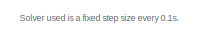
[diagram: root canvas - part 1/3, top left region]
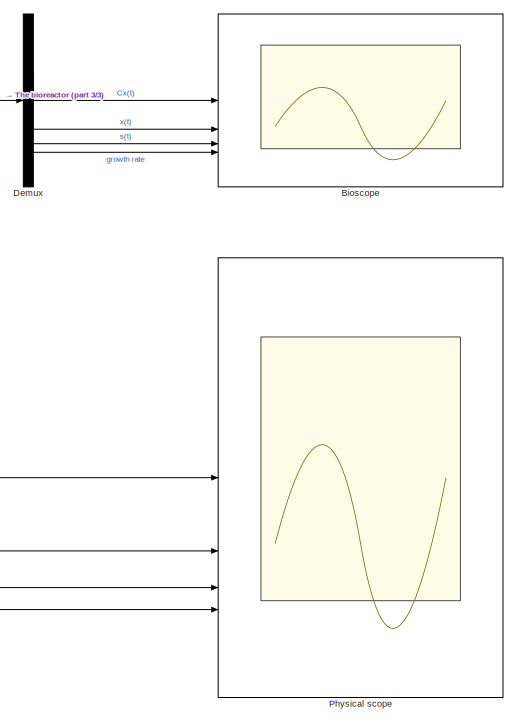
[diagram: root canvas - part 2/3, right side, full height]
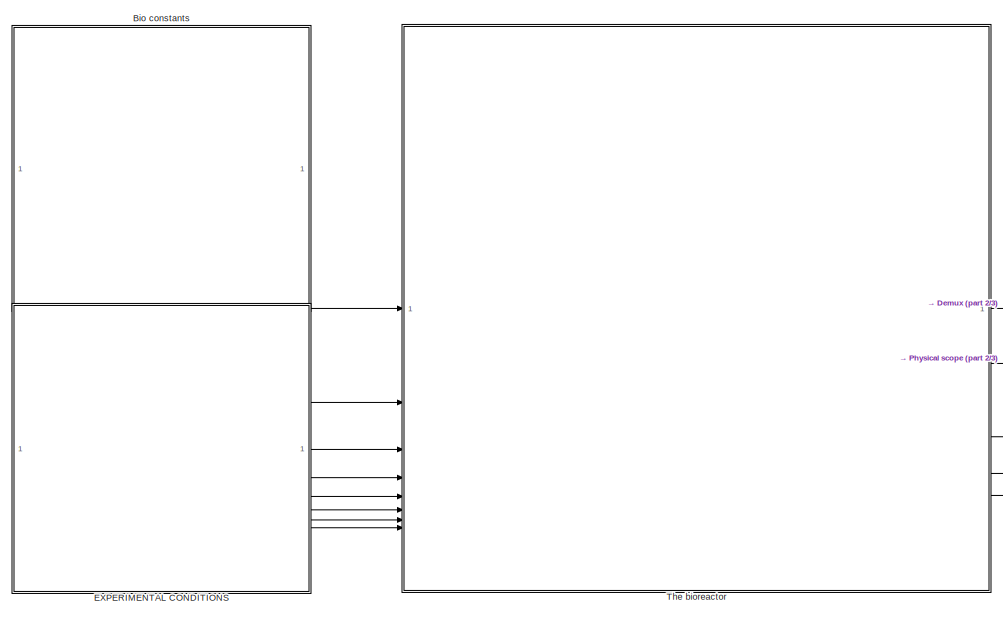
[diagram: root canvas - part 3/3, central region]
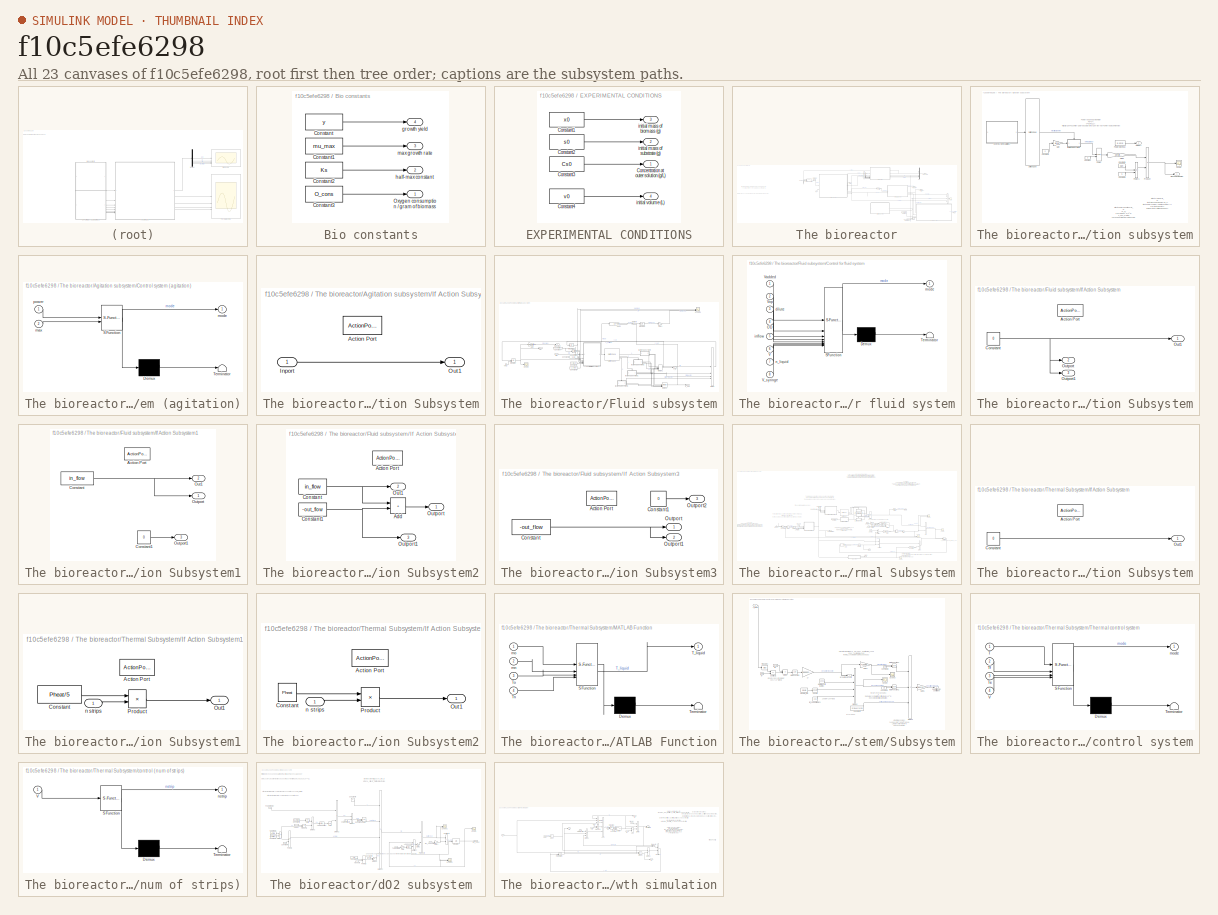
[diagram: thumbnail index - all 23 canvases of the model, root first then tree order]
MODEL slx_f10c5efe6298
KIND model
CONFIG AbsTol = auto
CONFIG EnableMultiTasking = off
CONFIG FixedStep = 0.1
CONFIG MaxStep = auto
CONFIG MinStep = auto
CONFIG RelTol = 1e-3
CONFIG SampleTimeConstraint = Unconstrained
CONFIG SolverName = FixedStepAuto
CONFIG StartTime = 0.0
CONFIG StopTime = 1000
BLOCK [SubSystem] Bio constants
BLOCK [Constant] Bio constants/Constant
  Value = y
BLOCK [Constant] Bio constants/Constant1
  Value = mu_max
BLOCK [Constant] Bio constants/Constant2
  Value = Ks
BLOCK [Constant] Bio constants/Constant3
  Value = O_cons
BLOCK [Outport] Bio constants/Oxygen consumption // gram of biomass
BLOCK [Outport] Bio constants/growth yield
  Port = 4
BLOCK [Outport] Bio constants/half-max constant
  Port = 2
BLOCK [Outport] Bio constants/max growth rate
  Port = 3
BLOCK [Scope] Bioscope
  Floating = off
  NumInputPorts = 4
  ScopeSpecificationString = Simulink.scopes.TimeScopeBlockCfg('CurrentConfiguration', extmgr.ConfigurationSet(extmgr.Configuration('Core','General UI',true),extmgr.Configuration('Core','Source UI',true),extmgr.Configuration('Sources','WiredSimulink',true,'DataLoggingVariableName','ScopeData2'),extmgr.Configuration('Visuals','Time Domain',true,'SerializedDisplays',{struct('MinYLimReal','0.09911','MaxYLimReal','0.21405','YLabe...<+3490ch>
BLOCK [Demux] Demux
BLOCK [SubSystem] EXPERIMENTAL CONDITIONS
BLOCK [Outport] EXPERIMENTAL CONDITIONS/Concentration at outer solution (g//L)
BLOCK [Constant] EXPERIMENTAL CONDITIONS/Constant1
  Value = x0
BLOCK [Constant] EXPERIMENTAL CONDITIONS/Constant2
  Value = s0
BLOCK [Constant] EXPERIMENTAL CONDITIONS/Constant3
  Value = Cs0
BLOCK [Constant] EXPERIMENTAL CONDITIONS/Constant4
  Value = v0
BLOCK [Outport] EXPERIMENTAL CONDITIONS/initial mass of biomass (g)
  Port = 3
BLOCK [Outport] EXPERIMENTAL CONDITIONS/initial mass of substrate (g)
  Port = 2
BLOCK [Outport] EXPERIMENTAL CONDITIONS/initial volume (L)
  Port = 4
BLOCK [Scope] Physical scope
  Floating = off
  NumInputPorts = 4
  ScopeSpecificationString = Simulink.scopes.TimeScopeBlockCfg('CurrentConfiguration', extmgr.ConfigurationSet(extmgr.Configuration('Core','General UI',true),extmgr.Configuration('Core','Source UI',true),extmgr.Configuration('Sources','WiredSimulink',true,'DataLoggingVariableName','ScopeData1'),extmgr.Configuration('Visuals','Time Domain',true,'SerializedDisplays',{struct('MinYLimReal','0.00437','MaxYLimReal','0.01065','YLabe...<+2856ch>
BLOCK [SubSystem] The bioreactor
BLOCK [Sum] The bioreactor/Add
  IconShape = rectangular
  Inputs = +++
BLOCK [SubSystem] The bioreactor/Agitation subsystem
BLOCK [Constant] The bioreactor/Agitation subsystem/Constant
  Value = 3
BLOCK [Constant] The bioreactor/Agitation subsystem/Constant1
  Value = diam
BLOCK [Constant] The bioreactor/Agitation subsystem/Constant2
  Value = 5
BLOCK [Constant] The bioreactor/Agitation subsystem/Constant3
  Value = n
BLOCK [SubSystem] The bioreactor/Agitation subsystem/Control system (agitation)
  ErrorFcn = Stateflow.Translate.translate
  PermitHierarchicalResolution = ExplicitOnly
  SFBlockType = Chart
  TreatAsAtomicUnit = on
BLOCK [Demux] The bioreactor/Agitation subsystem/Control system (agitation)/ Demux 
  Outputs = 1
BLOCK [S-Function] The bioreactor/Agitation subsystem/Control system (agitation)/ SFunction 
  EnableBusSupport = on
  FunctionName = sf_sfun
  PortCounts = [2 2]
  SFcnIsStateOwnerBlock = off
  SFunctionDeploymentMode = off
  Tag = Stateflow S-Function 2
BLOCK [Terminator] The bioreactor/Agitation subsystem/Control system (agitation)/ Terminator 
BLOCK [Inport] The bioreactor/Agitation subsystem/Control system (agitation)/max
  Port = 2
BLOCK [Outport] The bioreactor/Agitation subsystem/Control system (agitation)/mode
BLOCK [Inport] The bioreactor/Agitation subsystem/Control system (agitation)/power
BLOCK [Gain] The bioreactor/Agitation subsystem/Gain
  Gain = pi/30
BLOCK [Gain] The bioreactor/Agitation subsystem/Gain1
  Gain = density*kn
BLOCK [SubSystem] The bioreactor/Agitation subsystem/If Action Subsystem
  TreatAsAtomicUnit = on
BLOCK [ActionPort] The bioreactor/Agitation subsystem/If Action Subsystem/Action Port
  ActionPortLabel = case [ 1 ]:
BLOCK [Inport] The bioreactor/Agitation subsystem/If Action Subsystem/Inport
BLOCK [Outport] The bioreactor/Agitation subsystem/If Action Subsystem/Out1
BLOCK [Outport] The bioreactor/Agitation subsystem/Mechanical power
BLOCK [Outport] The bioreactor/Agitation subsystem/Outport
  Port = 2
BLOCK [Math] The bioreactor/Agitation subsystem/Power
  Operator = pow
BLOCK [Constant] The bioreactor/Agitation subsystem/Power electrical
  Value = 0.12*5
BLOCK [Math] The bioreactor/Agitation subsystem/Power1
  Operator = pow
BLOCK [Product] The bioreactor/Agitation subsystem/Product
BLOCK [Scope] The bioreactor/Agitation subsystem/Scope
  Floating = off
  NumInputPorts = 1
  ScopeSpecificationString = Simulink.scopes.TimeScopeBlockCfg('CurrentConfiguration', extmgr.ConfigurationSet(extmgr.Configuration('Core','General UI',true),extmgr.Configuration('Core','Source UI',true),extmgr.Configuration('Sources','WiredSimulink',true,'DataLoggingVariableName','ScopeData2'),extmgr.Configuration('Visuals','Time Domain',true,'SerializedDisplays',{struct('MinYLimReal','0.00007','MaxYLimReal','0.00027','YLabe...<+1428ch>
BLOCK [SwitchCase] The bioreactor/Agitation subsystem/Switch Case
  ShowDefaultCase = off
BLOCK [Reference] The bioreactor/Compare To Constant  REF=simulink/Logic and Bit
Operations/Compare
To Constant
  SourceBlock = simulink/Logic and Bit\nOperations/Compare\nTo Constant
  SourceType = Compare To Constant
BLOCK [Constant] The bioreactor/Constant
  Value = V_operational
BLOCK [Constant] The bioreactor/Constant3
  Value = 0
BLOCK [Inport] The bioreactor/Cs0
  Port = 5
BLOCK [SubSystem] The bioreactor/Fluid subsystem
BLOCK [Constant] The bioreactor/Fluid subsystem/Constant
  Value = V_operational
BLOCK [Constant] The bioreactor/Fluid subsystem/Constant1
  Value = n_liquid
BLOCK [Constant] The bioreactor/Fluid subsystem/Constant2
  Value = in_flow
BLOCK [Constant] The bioreactor/Fluid subsystem/Constant3
  Value = V_syringe
BLOCK [SubSystem] The bioreactor/Fluid subsystem/Control for fluid system
  ErrorFcn = Stateflow.Translate.translate
  PermitHierarchicalResolution = ExplicitOnly
  SFBlockType = Chart
  TreatAsAtomicUnit = on
BLOCK [Demux] The bioreactor/Fluid subsystem/Control for fluid system/ Demux 
  Outputs = 1
BLOCK [S-Function] The bioreactor/Fluid subsystem/Control for fluid system/ SFunction 
  EnableBusSupport = on
  FunctionName = sf_sfun
  PortCounts = [8 2]
  SFcnIsStateOwnerBlock = off
  SFunctionDeploymentMode = off
  Tag = Stateflow S-Function 3
BLOCK [Terminator] The bioreactor/Fluid subsystem/Control for fluid system/ Terminator 
BLOCK [Inport] The bioreactor/Fluid subsystem/Control for fluid system/OD
  Port = 4
BLOCK [Inport] The bioreactor/Fluid subsystem/Control for fluid system/V
  Port = 6
BLOCK [Inport] The bioreactor/Fluid subsystem/Control for fluid system/V_syringe
  Port = 8
BLOCK [Inport] The bioreactor/Fluid subsystem/Control for fluid system/Vadded
BLOCK [Inport] The bioreactor/Fluid subsystem/Control for fluid system/Vop
  Port = 2
BLOCK [Inport] The bioreactor/Fluid subsystem/Control for fluid system/dilute
  Port = 3
BLOCK [Inport] The bioreactor/Fluid subsystem/Control for fluid system/inflow
  Port = 5
BLOCK [Outport] The bioreactor/Fluid subsystem/Control for fluid system/mode
BLOCK [Inport] The bioreactor/Fluid subsystem/Control for fluid system/n_liquid
  Port = 7
BLOCK [Gain] The bioreactor/Fluid subsystem/Gain
  Gain = density
BLOCK [Gain] The bioreactor/Fluid subsystem/Gain1
  Gain = -1
BLOCK [Gain] The bioreactor/Fluid subsystem/Gain2
  Gain = dilute
BLOCK [Gain] The bioreactor/Fluid subsystem/Gain3
  Gain = 12*0.45
BLOCK [SubSystem] The bioreactor/Fluid subsystem/If Action Subsystem
  TreatAsAtomicUnit = on
BLOCK [ActionPort] The bioreactor/Fluid subsystem/If Action Subsystem/Action Port
  ActionPortLabel = case [ 0 ]:
BLOCK [Constant] The bioreactor/Fluid subsystem/If Action Subsystem/Constant
  Value = 0
BLOCK [Outport] The bioreactor/Fluid subsystem/If Action Subsystem/Out1
BLOCK [Outport] The bioreactor/Fluid subsystem/If Action Subsystem/Outport
  Port = 2
BLOCK [Outport] The bioreactor/Fluid subsystem/If Action Subsystem/Outport1
  Port = 3
BLOCK [SubSystem] The bioreactor/Fluid subsystem/If Action Subsystem1
  TreatAsAtomicUnit = on
BLOCK [ActionPort] The bioreactor/Fluid subsystem/If Action Subsystem1/Action Port
  ActionPortLabel = case [ 1 ]:
BLOCK [Constant] The bioreactor/Fluid subsystem/If Action Subsystem1/Constant
  Value = in_flow
BLOCK [Constant] The bioreactor/Fluid subsystem/If Action Subsystem1/Constant1
  Value = 0
BLOCK [Outport] The bioreactor/Fluid subsystem/If Action Subsystem1/Out1
  Port = 2
BLOCK [Outport] The bioreactor/Fluid subsystem/If Action Subsystem1/Outport
BLOCK [Outport] The bioreactor/Fluid subsystem/If Action Subsystem1/Outport1
  Port = 3
BLOCK [SubSystem] The bioreactor/Fluid subsystem/If Action Subsystem2
  TreatAsAtomicUnit = on
BLOCK [ActionPort] The bioreactor/Fluid subsystem/If Action Subsystem2/Action Port
  ActionPortLabel = case [ 2 ]:
BLOCK [Sum] The bioreactor/Fluid subsystem/If Action Subsystem2/Add
  IconShape = rectangular
BLOCK [Constant] The bioreactor/Fluid subsystem/If Action Subsystem2/Constant
  Value = in_flow
BLOCK [Constant] The bioreactor/Fluid subsystem/If Action Subsystem2/Constant1
  Value = -out_flow
BLOCK [Outport] The bioreactor/Fluid subsystem/If Action Subsystem2/Out1
  Port = 2
BLOCK [Outport] The bioreactor/Fluid subsystem/If Action Subsystem2/Outport
BLOCK [Outport] The bioreactor/Fluid subsystem/If Action Subsystem2/Outport1
  Port = 3
BLOCK [SubSystem] The bioreactor/Fluid subsystem/If Action Subsystem3
  TreatAsAtomicUnit = on
BLOCK [ActionPort] The bioreactor/Fluid subsystem/If Action Subsystem3/Action Port
  ActionPortLabel = case [ 3 ]:
BLOCK [Constant] The bioreactor/Fluid subsystem/If Action Subsystem3/Constant
  Value = -out_flow
BLOCK [Constant] The bioreactor/Fluid subsystem/If Action Subsystem3/Constant1
  Value = 0
BLOCK [Outport] The bioreactor/Fluid subsystem/If Action Subsystem3/Outport
BLOCK [Outport] The bioreactor/Fluid subsystem/If Action Subsystem3/Outport1
  Port = 2
BLOCK [Outport] The bioreactor/Fluid subsystem/If Action Subsystem3/Outport2
  Port = 3
BLOCK [Integrator] The bioreactor/Fluid subsystem/Integrator
  InitialCondition = V_operational*0.5
  InitialConditionSource = external
BLOCK [Integrator] The bioreactor/Fluid subsystem/Integrator1
BLOCK [Integrator] The bioreactor/Fluid subsystem/Integrator2
BLOCK [Merge] The bioreactor/Fluid subsystem/Merge
  Inputs = 4
BLOCK [Merge] The bioreactor/Fluid subsystem/Merge1
  Inputs = 4
BLOCK [Merge] The bioreactor/Fluid subsystem/Merge2
  Inputs = 4
BLOCK [Inport] The bioreactor/Fluid subsystem/OD 
BLOCK [Outport] The bioreactor/Fluid subsystem/Outport
  Port = 5
BLOCK [Scope] The bioreactor/Fluid subsystem/Scope
  Floating = off
  NumInputPorts = 1
  ScopeSpecificationString = Simulink.scopes.TimeScopeBlockCfg('CurrentConfiguration', extmgr.ConfigurationSet(extmgr.Configuration('Core','General UI',true),extmgr.Configuration('Core','Source UI',true),extmgr.Configuration('Sources','WiredSimulink',true,'DataLoggingVariableName','V_t','DataLoggingSaveFormat','StructureWithTime'),extmgr.Configuration('Visuals','Time Domain',true,'SerializedDisplays',{struct('MinYLimReal','0....<+1428ch>
BLOCK [Scope] The bioreactor/Fluid subsystem/Scope3
  Floating = off
  NumInputPorts = 3
  ScopeSpecificationString = Simulink.scopes.TimeScopeBlockCfg('CurrentConfiguration', extmgr.ConfigurationSet(extmgr.Configuration('Core','General UI',true),extmgr.Configuration('Core','Source UI',true),extmgr.Configuration('Sources','WiredSimulink',true,'DataLoggingVariableName','Vchanges'),extmgr.Configuration('Visuals','Time Domain',true,'SerializedDisplays',{struct('MinYLimReal','-0.00026','MaxYLimReal','0.03017','YLabel...<+1452ch>
BLOCK [SwitchCase] The bioreactor/Fluid subsystem/Switch Case
  CaseConditions = {0,1,2,3}
  ShowDefaultCase = off
BLOCK [Outport] The bioreactor/Fluid subsystem/V (L)
  Port = 2
BLOCK [Inport] The bioreactor/Fluid subsystem/V0 (L)
  Port = 2
BLOCK [Outport] The bioreactor/Fluid subsystem/mass (kg)
  Port = 4
BLOCK [Outport] The bioreactor/Fluid subsystem/v_in
  Port = 3
BLOCK [Outport] The bioreactor/Fluid subsystem/v_out
BLOCK [Gain] The bioreactor/Gain
  Gain = density
BLOCK [Inport] The bioreactor/Ks
  Port = 2
BLOCK [Mux] The bioreactor/Mux1
  DisplayOption = bar
BLOCK [Inport] The bioreactor/Oxygen consumption // gram of biomass
BLOCK [Product] The bioreactor/Product
BLOCK [Scope] The bioreactor/Scope
  Floating = off
  NumInputPorts = 1
  ScopeSpecificationString = Simulink.scopes.TimeScopeBlockCfg('CurrentConfiguration', extmgr.ConfigurationSet(extmgr.Configuration('Core','General UI',true),extmgr.Configuration('Core','Source UI',true),extmgr.Configuration('Sources','WiredSimulink',true,'DataLoggingVariableName','ScopeData1'),extmgr.Configuration('Visuals','Time Domain',true,'SerializedDisplays',{struct('MinYLimReal','4.075','MaxYLimReal','23.325','YLabelRe...<+1375ch>
BLOCK [Outport] The bioreactor/Temperature of liquid
  Port = 4
BLOCK [Outport] The bioreactor/Temperature of vessel
  Port = 5
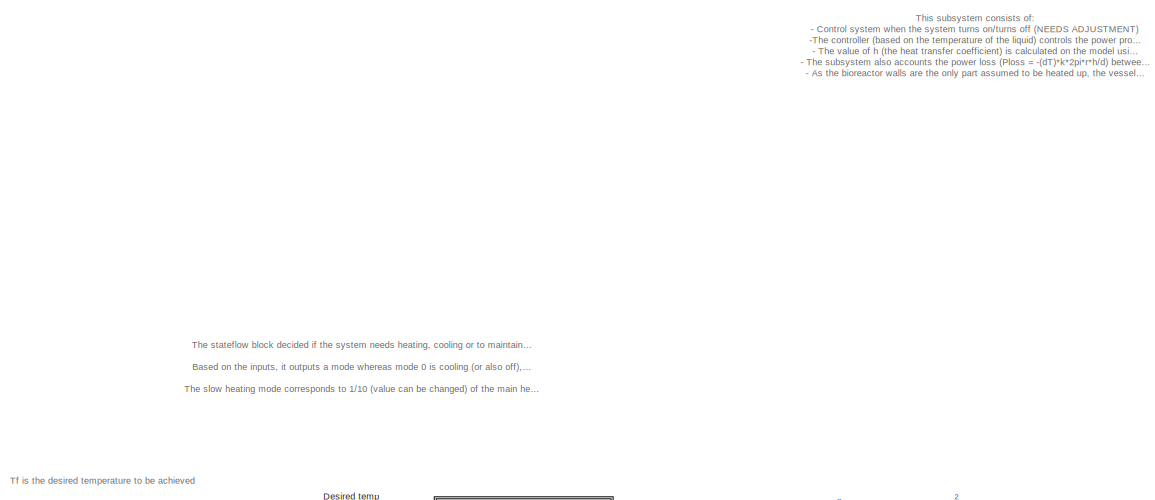
[diagram: The bioreactor/Thermal Subsystem - part 1/6, top center region]
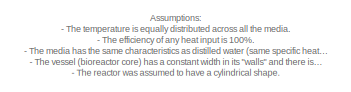
[diagram: The bioreactor/Thermal Subsystem - part 2/6, top right region]
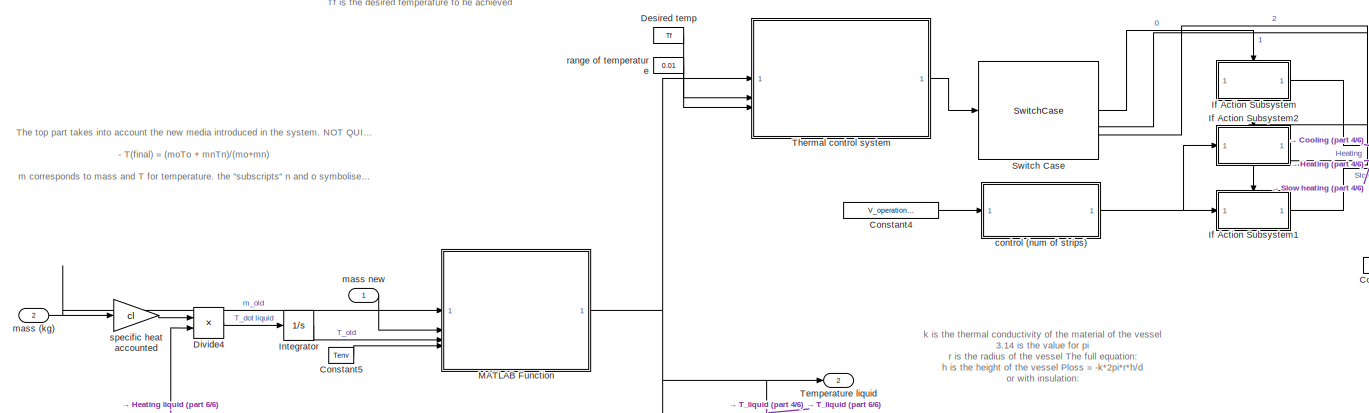
[diagram: The bioreactor/Thermal Subsystem - part 3/6, central region]
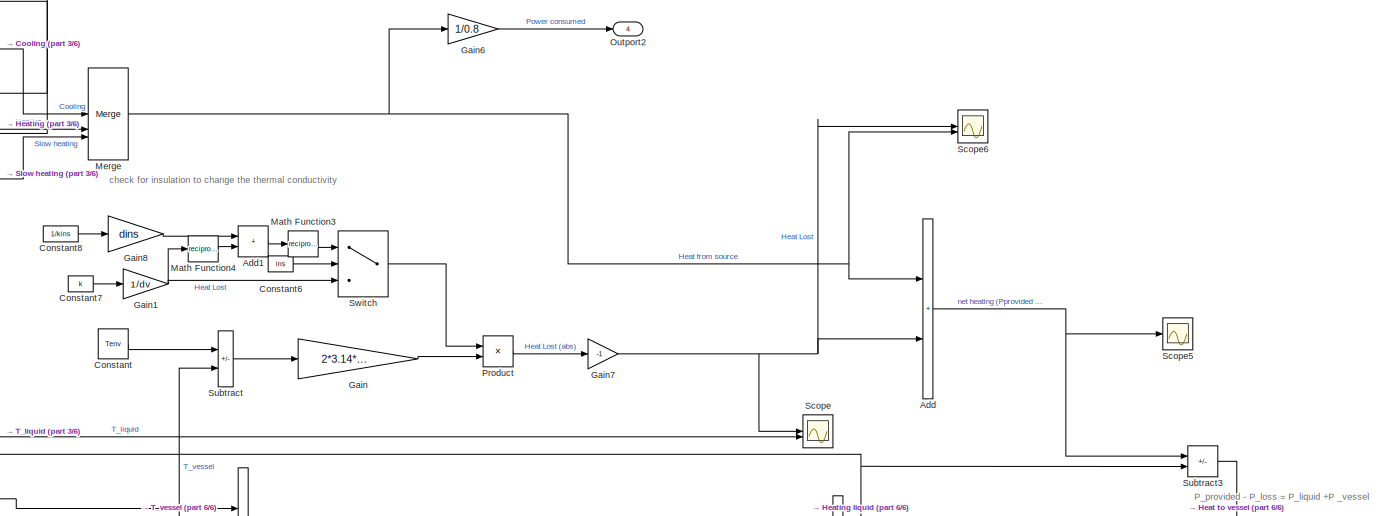
[diagram: The bioreactor/Thermal Subsystem - part 4/6, middle right region]
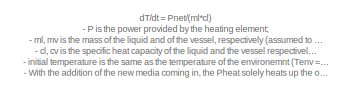
[diagram: The bioreactor/Thermal Subsystem - part 5/6, middle left region]
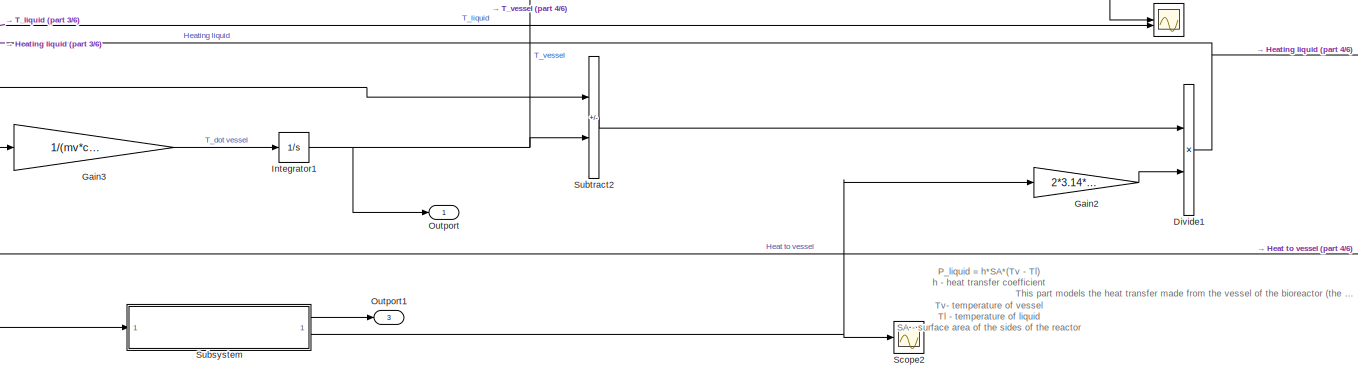
[diagram: The bioreactor/Thermal Subsystem - part 6/6, bottom right region]
BLOCK [SubSystem] The bioreactor/Thermal Subsystem
BLOCK [Sum] The bioreactor/Thermal Subsystem/Add
  IconShape = rectangular
BLOCK [Sum] The bioreactor/Thermal Subsystem/Add1
  IconShape = rectangular
BLOCK [Constant] The bioreactor/Thermal Subsystem/Constant
  Value = Tenv
BLOCK [Constant] The bioreactor/Thermal Subsystem/Constant4
  Value = V_operational
BLOCK [Constant] The bioreactor/Thermal Subsystem/Constant5
  Value = Tenv
BLOCK [Constant] The bioreactor/Thermal Subsystem/Constant6
  Value = ins
BLOCK [Constant] The bioreactor/Thermal Subsystem/Constant7
  Value = k
BLOCK [Constant] The bioreactor/Thermal Subsystem/Constant8
  Value = 1/kins
BLOCK [Constant] The bioreactor/Thermal Subsystem/Desired temp
  Value = Tf
BLOCK [Product] The bioreactor/Thermal Subsystem/Divide1
  Inputs = **
BLOCK [Product] The bioreactor/Thermal Subsystem/Divide4
  Inputs = /*
BLOCK [Gain] The bioreactor/Thermal Subsystem/Gain
  Gain = 2*3.14*rv*hv
BLOCK [Gain] The bioreactor/Thermal Subsystem/Gain1
  Gain = 1/dv
BLOCK [Gain] The bioreactor/Thermal Subsystem/Gain2
  Gain = 2*3.14*rv*hv
BLOCK [Gain] The bioreactor/Thermal Subsystem/Gain3
  Gain = 1/(mv*ct)
BLOCK [Gain] The bioreactor/Thermal Subsystem/Gain6
  Gain = 1/0.8
BLOCK [Gain] The bioreactor/Thermal Subsystem/Gain7
  Gain = -1
BLOCK [Gain] The bioreactor/Thermal Subsystem/Gain8
  Gain = dins
BLOCK [SubSystem] The bioreactor/Thermal Subsystem/If Action Subsystem
  TreatAsAtomicUnit = on
BLOCK [ActionPort] The bioreactor/Thermal Subsystem/If Action Subsystem/Action Port
  ActionPortLabel = case [ 0 ]:
BLOCK [Constant] The bioreactor/Thermal Subsystem/If Action Subsystem/Constant
  Value = 0
BLOCK [Outport] The bioreactor/Thermal Subsystem/If Action Subsystem/Out1
BLOCK [SubSystem] The bioreactor/Thermal Subsystem/If Action Subsystem1
  TreatAsAtomicUnit = on
BLOCK [ActionPort] The bioreactor/Thermal Subsystem/If Action Subsystem1/Action Port
  ActionPortLabel = case [ 2 ]:
BLOCK [Constant] The bioreactor/Thermal Subsystem/If Action Subsystem1/Constant
  Value = Pheat/5
BLOCK [Outport] The bioreactor/Thermal Subsystem/If Action Subsystem1/Out1
BLOCK [Product] The bioreactor/Thermal Subsystem/If Action Subsystem1/Product
BLOCK [Inport] The bioreactor/Thermal Subsystem/If Action Subsystem1/n strips
BLOCK [SubSystem] The bioreactor/Thermal Subsystem/If Action Subsystem2
  TreatAsAtomicUnit = on
BLOCK [ActionPort] The bioreactor/Thermal Subsystem/If Action Subsystem2/Action Port
  ActionPortLabel = case [ 1 ]:
BLOCK [Constant] The bioreactor/Thermal Subsystem/If Action Subsystem2/Constant
  Value = Pheat
BLOCK [Outport] The bioreactor/Thermal Subsystem/If Action Subsystem2/Out1
BLOCK [Product] The bioreactor/Thermal Subsystem/If Action Subsystem2/Product
BLOCK [Inport] The bioreactor/Thermal Subsystem/If Action Subsystem2/n strips
BLOCK [Integrator] The bioreactor/Thermal Subsystem/Integrator
  InitialCondition = Tenv
BLOCK [Integrator] The bioreactor/Thermal Subsystem/Integrator1
  InitialCondition = Tenv
BLOCK [SubSystem] The bioreactor/Thermal Subsystem/MATLAB Function
  ErrorFcn = Stateflow.Translate.translate
  LibrarySourceBlock = simulink/User-Defined\nFunctions/MATLAB Function
  PermitHierarchicalResolution = ExplicitOnly
  SFBlockType = MATLAB Function
  TreatAsAtomicUnit = on
BLOCK [Demux] The bioreactor/Thermal Subsystem/MATLAB Function/ Demux 
  Outputs = 1
BLOCK [S-Function] The bioreactor/Thermal Subsystem/MATLAB Function/ SFunction 
  EnableBusSupport = on
  FunctionName = sf_sfun
  PortCounts = [4 2]
  SFcnIsStateOwnerBlock = off
  SFunctionDeploymentMode = off
  Tag = Stateflow S-Function 5
BLOCK [Terminator] The bioreactor/Thermal Subsystem/MATLAB Function/ Terminator 
BLOCK [Outport] The bioreactor/Thermal Subsystem/MATLAB Function/T_liquid
BLOCK [Inport] The bioreactor/Thermal Subsystem/MATLAB Function/Tn
  Port = 4
BLOCK [Inport] The bioreactor/Thermal Subsystem/MATLAB Function/To
  Port = 3
BLOCK [Inport] The bioreactor/Thermal Subsystem/MATLAB Function/mn
  Port = 2
BLOCK [Inport] The bioreactor/Thermal Subsystem/MATLAB Function/mo
BLOCK [Math] The bioreactor/Thermal Subsystem/Math Function3
  Operator = reciprocal
BLOCK [Math] The bioreactor/Thermal Subsystem/Math Function4
  Operator = reciprocal
BLOCK [Merge] The bioreactor/Thermal Subsystem/Merge
  Inputs = 3
BLOCK [Outport] The bioreactor/Thermal Subsystem/Outport
BLOCK [Outport] The bioreactor/Thermal Subsystem/Outport1
  Port = 3
BLOCK [Outport] The bioreactor/Thermal Subsystem/Outport2
  Port = 4
BLOCK [Product] The bioreactor/Thermal Subsystem/Product
BLOCK [Scope] The bioreactor/Thermal Subsystem/Scope
  Floating = off
  NumInputPorts = 2
  ScopeSpecificationString = Simulink.scopes.TimeScopeBlockCfg('CurrentConfiguration', extmgr.ConfigurationSet(extmgr.Configuration('Core','General UI',true),extmgr.Configuration('Core','Source UI',true),extmgr.Configuration('Sources','WiredSimulink',true,'DataLoggingVariableName','Without_ins','DataLogging',true,'DataLoggingSaveFormat','StructureWithTime'),extmgr.Configuration('Visuals','Time Domain',true,'SerializedDisplays...<+1479ch>
BLOCK [Scope] The bioreactor/Thermal Subsystem/Scope2
  Floating = off
  NumInputPorts = 1
  ScopeSpecificationString = Simulink.scopes.TimeScopeBlockCfg('CurrentConfiguration', extmgr.ConfigurationSet(extmgr.Configuration('Core','General UI',true),extmgr.Configuration('Core','Source UI',true),extmgr.Configuration('Sources','WiredSimulink',true,'DataLoggingVariableName','ScopeData1'),extmgr.Configuration('Visuals','Time Domain',true,'SerializedDisplays',{struct('MinYLimReal','10882.06026','MaxYLimReal','11476.78899...<+1445ch>
BLOCK [Scope] The bioreactor/Thermal Subsystem/Scope5
  Floating = off
  NumInputPorts = 1
  ScopeSpecificationString = Simulink.scopes.TimeScopeBlockCfg('CurrentConfiguration', extmgr.ConfigurationSet(extmgr.Configuration('Core','General UI',true),extmgr.Configuration('Core','Source UI',true),extmgr.Configuration('Sources','WiredSimulink',true,'DataLoggingVariableName','ScopeData4'),extmgr.Configuration('Visuals','Time Domain',true,'SerializedDisplays',{struct('MinYLimReal','-0.5','MaxYLimReal','4.5','YLabelReal',...<+1366ch>
BLOCK [Scope] The bioreactor/Thermal Subsystem/Scope6
  Floating = off
  NumInputPorts = 2
  ScopeSpecificationString = Simulink.scopes.TimeScopeBlockCfg('CurrentConfiguration', extmgr.ConfigurationSet(extmgr.Configuration('Core','General UI',true),extmgr.Configuration('Core','Source UI',true),extmgr.Configuration('Sources','WiredSimulink',true,'DataLoggingVariableName','ScopeData2'),extmgr.Configuration('Visuals','Time Domain',true,'SerializedDisplays',{struct('MinYLimReal','-10.00148','MaxYLimReal','10.00016','YL...<+1418ch>
BLOCK [SubSystem] The bioreactor/Thermal Subsystem/Subsystem
BLOCK [Gain] The bioreactor/Thermal Subsystem/Subsystem/"A"
  Gain = 0.00002414
BLOCK [Constant] The bioreactor/Thermal Subsystem/Subsystem/"B"
  Value = 247.8
BLOCK [Constant] The bioreactor/Thermal Subsystem/Subsystem/"C"
  Value = 140
BLOCK [Constant] The bioreactor/Thermal Subsystem/Subsystem/Constant1
  Value = 2*3.14*rv*hv
BLOCK [Constant] The bioreactor/Thermal Subsystem/Subsystem/Constant2
  Value = 1/3
BLOCK [Constant] The bioreactor/Thermal Subsystem/Subsystem/Constant3
  Value = 1/2
BLOCK [Product] The bioreactor/Thermal Subsystem/Subsystem/Divide
  Inputs = */
BLOCK [Product] The bioreactor/Thermal Subsystem/Subsystem/Divide2
  Inputs = /***
BLOCK [Product] The bioreactor/Thermal Subsystem/Subsystem/Divide3
  Inputs = **/
BLOCK [Gain] The bioreactor/Thermal Subsystem/Subsystem/Gain4
  Gain = 4180/0.6
BLOCK [Gain] The bioreactor/Thermal Subsystem/Subsystem/Gain5
  Gain = 0.664*0.6
BLOCK [Math] The bioreactor/Thermal Subsystem/Subsystem/Math Function
  Operator = 10^u
BLOCK [Math] The bioreactor/Thermal Subsystem/Subsystem/Math Function1
  Operator = pow
BLOCK [Math] The bioreactor/Thermal Subsystem/Subsystem/Math Function2
  Operator = pow
BLOCK [Scope] The bioreactor/Thermal Subsystem/Subsystem/Scope
  Floating = off
  NumInputPorts = 1
  ScopeSpecificationString = Simulink.scopes.TimeScopeBlockCfg('CurrentConfiguration', extmgr.ConfigurationSet(extmgr.Configuration('Core','General UI',true),extmgr.Configuration('Core','Source UI',true),extmgr.Configuration('Sources','WiredSimulink',true,'DataLoggingVariableName','ScopeData1'),extmgr.Configuration('Visuals','Time Domain',true,'SerializedDisplays',{struct('MinYLimReal','2061.13273','MaxYLimReal','2341.56775',...<+1425ch>
BLOCK [Scope] The bioreactor/Thermal Subsystem/Subsystem/Scope3
  Floating = off
  NumInputPorts = 1
  ScopeSpecificationString = Simulink.scopes.TimeScopeBlockCfg('CurrentConfiguration', extmgr.ConfigurationSet(extmgr.Configuration('Core','General UI',true),extmgr.Configuration('Core','Source UI',true),extmgr.Configuration('Sources','WiredSimulink',true,'DataLoggingVariableName','ScopeData2'),extmgr.Configuration('Visuals','Time Domain',true,'SerializedDisplays',{struct('MinYLimReal','5.5456','MaxYLimReal','6.30013','YLabel...<+1397ch>
BLOCK [Math] The bioreactor/Thermal Subsystem/Subsystem/Square
  Operator = square
BLOCK [Sum] The bioreactor/Thermal Subsystem/Subsystem/Subtract1
  IconShape = rectangular
  Inputs = +-
BLOCK [Bias] The bioreactor/Thermal Subsystem/Subsystem/T (in Kelvin)
  Bias = 273
  SaturateOnIntegerOverflow = off
BLOCK [Inport] The bioreactor/Thermal Subsystem/Subsystem/T_liquid
BLOCK [Constant] The bioreactor/Thermal Subsystem/Subsystem/diameter_imp
  Value = 0.04/3
BLOCK [Outport] The bioreactor/Thermal Subsystem/Subsystem/dynamic viscosity
BLOCK [Outport] The bioreactor/Thermal Subsystem/Subsystem/h - heat transfer coefficient
  Port = 2
BLOCK [Constant] The bioreactor/Thermal Subsystem/Subsystem/rot_speed (rad//s ?)
  Value = 10.5
BLOCK [Constant] The bioreactor/Thermal Subsystem/Subsystem/water density (kg//m3) 
  Value = 1000
BLOCK [Sum] The bioreactor/Thermal Subsystem/Subtract
  IconShape = rectangular
  Inputs = -+
BLOCK [Sum] The bioreactor/Thermal Subsystem/Subtract2
  IconShape = rectangular
  Inputs = -+
BLOCK [Sum] The bioreactor/Thermal Subsystem/Subtract3
  IconShape = rectangular
  Inputs = +-
BLOCK [Switch] The bioreactor/Thermal Subsystem/Switch
  Criteria = u2 > Threshold
  InputSameDT = off
  SaturateOnIntegerOverflow = off
BLOCK [SwitchCase] The bioreactor/Thermal Subsystem/Switch Case
  CaseConditions = {0,1,2}
  ShowDefaultCase = off
BLOCK [Outport] The bioreactor/Thermal Subsystem/Temperature liquid
  Port = 2
BLOCK [SubSystem] The bioreactor/Thermal Subsystem/Thermal control system
  ErrorFcn = Stateflow.Translate.translate
  PermitHierarchicalResolution = ExplicitOnly
  PortSchema = {"entries":[{"content":{"sides":[{"content":{"connectorIds":["In2","In3","In4","In1"]},"type":"ConnectorPlacement.EquallySpacedRectSide","uuid":"f67a4cf3-6f8c-426f-9bd7-ae2c7f98a3c9"},{"content":{"connectorIds":["Out1"],"side":"RIGHT"},"type":"ConnectorPlacement.EquallySpacedRectSide","uuid":"c1f357e0-29c8-4817-9f5e-169ac9c6a01e"},{"content":{"side":"TOP"},"type":"ConnectorPlacement.EquallySpacedR...<+240ch>
  SFBlockType = Chart
  TreatAsAtomicUnit = on
BLOCK [Demux] The bioreactor/Thermal Subsystem/Thermal control system/ Demux 
  Outputs = 1
BLOCK [S-Function] The bioreactor/Thermal Subsystem/Thermal control system/ SFunction 
  EnableBusSupport = on
  FunctionName = sf_sfun
  PortCounts = [4 2]
  SFcnIsStateOwnerBlock = off
  SFunctionDeploymentMode = off
  Tag = Stateflow S-Function 1
BLOCK [Terminator] The bioreactor/Thermal Subsystem/Thermal control system/ Terminator 
BLOCK [Inport] The bioreactor/Thermal Subsystem/Thermal control system/T
BLOCK [Inport] The bioreactor/Thermal Subsystem/Thermal control system/Te
  Port = 3
BLOCK [Inport] The bioreactor/Thermal Subsystem/Thermal control system/Tf
  Port = 2
BLOCK [Inport] The bioreactor/Thermal Subsystem/Thermal control system/V
  Port = 4
BLOCK [Outport] The bioreactor/Thermal Subsystem/Thermal control system/mode
BLOCK [SubSystem] The bioreactor/Thermal Subsystem/control (num of strips)
  ErrorFcn = Stateflow.Translate.translate
  PermitHierarchicalResolution = ExplicitOnly
  SFBlockType = Chart
  TreatAsAtomicUnit = on
BLOCK [Demux] The bioreactor/Thermal Subsystem/control (num of strips)/ Demux 
  Outputs = 1
BLOCK [S-Function] The bioreactor/Thermal Subsystem/control (num of strips)/ SFunction 
  EnableBusSupport = on
  FunctionName = sf_sfun
  PortCounts = [1 2]
  SFcnIsStateOwnerBlock = off
  SFunctionDeploymentMode = off
  Tag = Stateflow S-Function 4
BLOCK [Terminator] The bioreactor/Thermal Subsystem/control (num of strips)/ Terminator 
BLOCK [Inport] The bioreactor/Thermal Subsystem/control (num of strips)/V
BLOCK [Outport] The bioreactor/Thermal Subsystem/control (num of strips)/nstrip
BLOCK [Inport] The bioreactor/Thermal Subsystem/mass (kg)
  Port = 2
BLOCK [Inport] The bioreactor/Thermal Subsystem/mass new
BLOCK [Constant] The bioreactor/Thermal Subsystem/range of temperature
  Value = 0.01
BLOCK [Gain] The bioreactor/Thermal Subsystem/specific heat accounted
  Gain = cl
BLOCK [Inport] The bioreactor/V0
  Port = 8
BLOCK [Outport] The bioreactor/Volume
  Port = 2
BLOCK [Outport] The bioreactor/biological results
BLOCK [Outport] The bioreactor/dO2
  Port = 3
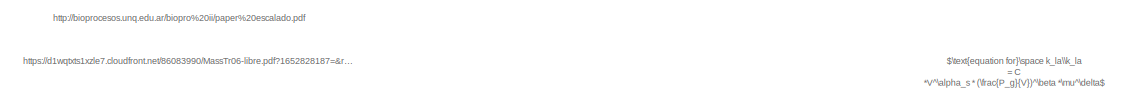
[diagram: The bioreactor/dO2 subsystem - part 1/3, top left region]
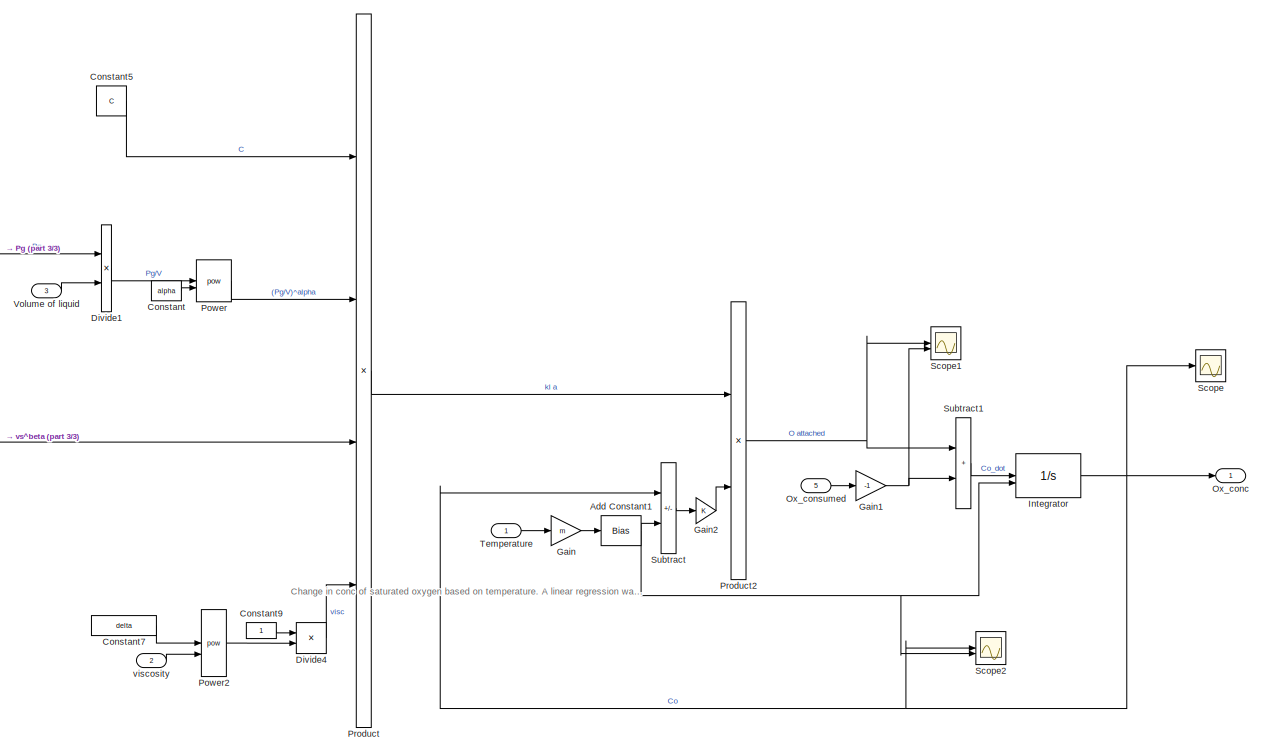
[diagram: The bioreactor/dO2 subsystem - part 2/3, right side, full height]
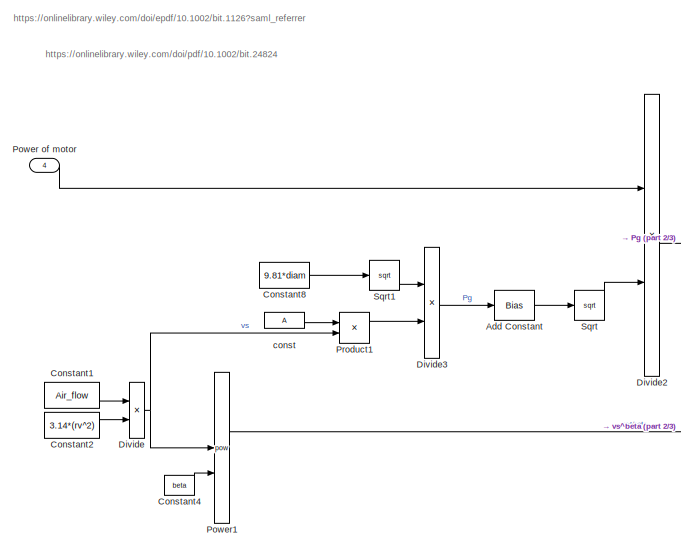
[diagram: The bioreactor/dO2 subsystem - part 3/3, middle left region]
BLOCK [SubSystem] The bioreactor/dO2 subsystem
BLOCK [Bias] The bioreactor/dO2 subsystem/Add Constant
  Bias = 1
  SaturateOnIntegerOverflow = off
BLOCK [Bias] The bioreactor/dO2 subsystem/Add Constant1
  Bias = e
  SaturateOnIntegerOverflow = off
BLOCK [Constant] The bioreactor/dO2 subsystem/Constant
  Value = alpha
BLOCK [Constant] The bioreactor/dO2 subsystem/Constant1
  Value = Air_flow
BLOCK [Constant] The bioreactor/dO2 subsystem/Constant2
  Value = 3.14*(rv^2)
BLOCK [Constant] The bioreactor/dO2 subsystem/Constant4
  Value = beta
BLOCK [Constant] The bioreactor/dO2 subsystem/Constant5
  Value = C
BLOCK [Constant] The bioreactor/dO2 subsystem/Constant7
  Value = delta
BLOCK [Constant] The bioreactor/dO2 subsystem/Constant8
  Value = 9.81*diam
BLOCK [Constant] The bioreactor/dO2 subsystem/Constant9
BLOCK [Product] The bioreactor/dO2 subsystem/Divide
  Inputs = */
BLOCK [Product] The bioreactor/dO2 subsystem/Divide1
  Inputs = */
BLOCK [Product] The bioreactor/dO2 subsystem/Divide2
  Inputs = */
BLOCK [Product] The bioreactor/dO2 subsystem/Divide3
  Inputs = /*
BLOCK [Product] The bioreactor/dO2 subsystem/Divide4
  Inputs = */
BLOCK [Gain] The bioreactor/dO2 subsystem/Gain
  Gain = m
BLOCK [Gain] The bioreactor/dO2 subsystem/Gain1
  Gain = -1
BLOCK [Gain] The bioreactor/dO2 subsystem/Gain2
BLOCK [Integrator] The bioreactor/dO2 subsystem/Integrator
  InitialCondition = m*Ti + e
  InitialConditionSource = external
BLOCK [Outport] The bioreactor/dO2 subsystem/Ox_conc
BLOCK [Inport] The bioreactor/dO2 subsystem/Ox_consumed 
  Port = 5
BLOCK [Math] The bioreactor/dO2 subsystem/Power
  Operator = pow
BLOCK [Inport] The bioreactor/dO2 subsystem/Power of motor
  Port = 4
BLOCK [Math] The bioreactor/dO2 subsystem/Power1
  Operator = pow
BLOCK [Math] The bioreactor/dO2 subsystem/Power2
  Operator = pow
BLOCK [Product] The bioreactor/dO2 subsystem/Product
  Inputs = 4
BLOCK [Product] The bioreactor/dO2 subsystem/Product1
BLOCK [Product] The bioreactor/dO2 subsystem/Product2
BLOCK [Scope] The bioreactor/dO2 subsystem/Scope
  Floating = off
  NumInputPorts = 1
  ScopeSpecificationString = Simulink.scopes.TimeScopeBlockCfg('CurrentConfiguration', extmgr.ConfigurationSet(extmgr.Configuration('Core','General UI',true),extmgr.Configuration('Core','Source UI',true),extmgr.Configuration('Sources','WiredSimulink',true),extmgr.Configuration('Visuals','Time Domain',true,'SerializedDisplays',{struct('MinYLimReal','5.85316','MaxYLimReal','8.6652','YLabelReal','','MinYLimMag','5.85316','MaxYLi...<+1351ch>
BLOCK [Scope] The bioreactor/dO2 subsystem/Scope1
  Floating = off
  NumInputPorts = 2
  ScopeSpecificationString = Simulink.scopes.TimeScopeBlockCfg('CurrentConfiguration', extmgr.ConfigurationSet(extmgr.Configuration('Core','General UI',true),extmgr.Configuration('Core','Source UI',true),extmgr.Configuration('Sources','WiredSimulink',true,'DataLoggingVariableName','ScopeData1'),extmgr.Configuration('Visuals','Time Domain',true,'SerializedDisplays',{struct('MinYLimReal','-0.005','MaxYLimReal','0.00208','YLabel...<+1418ch>
BLOCK [Scope] The bioreactor/dO2 subsystem/Scope2
  Floating = off
  NumInputPorts = 2
  ScopeSpecificationString = Simulink.scopes.TimeScopeBlockCfg('CurrentConfiguration', extmgr.ConfigurationSet(extmgr.Configuration('Core','General UI',true),extmgr.Configuration('Core','Source UI',true),extmgr.Configuration('Sources','WiredSimulink',true,'DataLoggingVariableName','ScopeData3'),extmgr.Configuration('Visuals','Time Domain',true,'SerializedDisplays',{struct('MinYLimReal','5.85316','MaxYLimReal','8.6652','YLabel...<+1399ch>
BLOCK [Sqrt] The bioreactor/dO2 subsystem/Sqrt
BLOCK [Sqrt] The bioreactor/dO2 subsystem/Sqrt1
BLOCK [Sum] The bioreactor/dO2 subsystem/Subtract
  IconShape = rectangular
  Inputs = -+
BLOCK [Sum] The bioreactor/dO2 subsystem/Subtract1
  IconShape = rectangular
BLOCK [Inport] The bioreactor/dO2 subsystem/Temperature
BLOCK [Inport] The bioreactor/dO2 subsystem/Volume of liquid
  Port = 3
BLOCK [Constant] The bioreactor/dO2 subsystem/const
  Value = A
BLOCK [Inport] The bioreactor/dO2 subsystem/viscosity
  Port = 2
BLOCK [SubSystem] The bioreactor/growth simulation
BLOCK [Abs] The bioreactor/growth simulation/Abs1
  SaturateOnIntegerOverflow = off
BLOCK [Sum] The bioreactor/growth simulation/Add
  IconShape = rectangular
BLOCK [Sum] The bioreactor/growth simulation/Add1
  IconShape = rectangular
  Inputs = -+-
BLOCK [Constant] The bioreactor/growth simulation/Constant3
  Value = 0
BLOCK [Inport] The bioreactor/growth simulation/Cs0
  Port = 7
BLOCK [Outport] The bioreactor/growth simulation/Cx
BLOCK [Product] The bioreactor/growth simulation/Divide
  Inputs = **/
BLOCK [Product] The bioreactor/growth simulation/Divide1
  Inputs = /**
BLOCK [Product] The bioreactor/growth simulation/Divide2
  Inputs = */*
BLOCK [Product] The bioreactor/growth simulation/Divide3
  Inputs = **
BLOCK [Product] The bioreactor/growth simulation/Divide4
  Inputs = /*
BLOCK [Integrator] The bioreactor/growth simulation/Integrator
  InitialCondition = x0
  InitialConditionSource = external
BLOCK [Integrator] The bioreactor/growth simulation/Integrator1
  InitialCondition = s0
  InitialConditionSource = external
BLOCK [Inport] The bioreactor/growth simulation/Ks
  Port = 4
BLOCK [Product] The bioreactor/growth simulation/Product1
BLOCK [Product] The bioreactor/growth simulation/Product2
BLOCK [Sum] The bioreactor/growth simulation/Subtract
  IconShape = rectangular
  Inputs = +-
BLOCK [Switch] The bioreactor/growth simulation/Switch
  Criteria = u2 > Threshold
  InputSameDT = off
  SaturateOnIntegerOverflow = off
BLOCK [Inport] The bioreactor/growth simulation/V
BLOCK [Outport] The bioreactor/growth simulation/growth rate
  Port = 4
BLOCK [Inport] The bioreactor/growth simulation/growth yield
  Port = 6
BLOCK [Inport] The bioreactor/growth simulation/max gr
  Port = 5
BLOCK [Outport] The bioreactor/growth simulation/s(t)
  Port = 3
BLOCK [Inport] The bioreactor/growth simulation/s0
  Port = 8
BLOCK [Inport] The bioreactor/growth simulation/vin
  Port = 2
BLOCK [Inport] The bioreactor/growth simulation/vout
  Port = 3
BLOCK [Outport] The bioreactor/growth simulation/x(t)
  Port = 2
BLOCK [Inport] The bioreactor/growth simulation/x0
  Port = 9
BLOCK [Inport] The bioreactor/max gr
  Port = 3
BLOCK [Switch] The bioreactor/minimum concentration
  Criteria = u2 > Threshold
  InputSameDT = off
  SaturateOnIntegerOverflow = off
  Threshold = 0.2
BLOCK [Inport] The bioreactor/s0
  Port = 6
BLOCK [Inport] The bioreactor/x0
  Port = 7
BLOCK [Inport] The bioreactor/y
  Port = 4
ANNOTATION (root): Solver used is a fixed step size every 0.1s.
ANNOTATION The bioreactor: ALL THE NEW MASS INSTANTLY CHANGES TEMPERATURE AND THE NEW AND OLD REACH A EQUILIBRIUM!!!
ANNOTATION The bioreactor: x(t) must be bigger than the value in switch case to be considered as a valid concentration for OD input. The control algorythim for the system should allow to account for regulation/adjustment of OD input/minimum concentration.
ANNOTATION The bioreactor/Agitation subsystem: $\text{symbols}\\P_ m - \text{mechanical power} \\k_n - \text{power number (Newton number)} \\ \rho - \text{density} \\ \omega - \text{rotational speed} \\ d - \text{diameter of stirrer} \\ P_e - \text{electrical power} \\ \eta- \text{efficiency of motor} \\$
ANNOTATION The bioreactor/Agitation subsystem: $\text{power equations}\\P_ m = k_n * \rho *\omega^3*d^5\\ P_m = P_e * \eta$ second equation may not be useful
ANNOTATION The bioreactor/Agitation subsystem: Power required by the motor Pe = V * I V = 5V, I = 0.12A https://argon40.com/en-gb/products/draft-argon-fan-hat-40mm-replacement-fan
ANNOTATION The bioreactor/Thermal Subsystem: dT/dt = Pnet/(ml*cl) - P is the power provided by the heating element; - ml, mv is the mass of the liquid and of the vessel, respectively (assumed to be 0.25kg and 2kg); - cl, cv is the specific heat capacity of the liquid and the vessel respectively (cl = cwater = 4180 J/kg*K and cv = cglass = 840 J/kg*K); - initial temperature is the same as the temperature of the environemnt (Tenv = 25 degC) - ...<+403ch>
ANNOTATION The bioreactor/Thermal Subsystem: k is the thermal conductivity of the material of the vessel 3.14 is the value for pi r is the radius of the vessel The full equation: h is the height of the vessel Ploss = -k*2pi*r*h/d or with insulation:
ANNOTATION The bioreactor/Thermal Subsystem: P_liquid = h*SA*(Tv - Tl) h - heat transfer coefficient Tv- temperature of vessel Tl - temperature of liquid SA - surface area of the sides of the reactor
ANNOTATION The bioreactor/Thermal Subsystem: This subsystem consists of: - Control system when the system turns on/turns off (NEEDS ADJUSTMENT) -The controller (based on the temperature of the liquid) controls the power provided to the vessel (P_provided). The vessel is assumed to be the only part heated up. - The value of h (the heat transfer coefficient) is calculated on the model using a series of inputs that will be controlled later on d...<+852ch>
ANNOTATION The bioreactor/Thermal Subsystem: P_provided - P_loss = P_liquid +P _vessel
ANNOTATION The bioreactor/Thermal Subsystem: This part models the heat transfer made from the vessel of the bioreactor (the part that is heated) to the liquid in itself.
ANNOTATION The bioreactor/Thermal Subsystem: Assumptions: - The temperature is equally distributed across all the media. - The efficiency of any heat input is 100%. - The media has the same characteristics as distilled water (same specific heat capacity and density for example). - The vessel (bioreactor core) has a constant width in its "walls" and there is no heat transfer in the top and bottom of the bioreactor. - The reactor was assumed t...<+448ch>
ANNOTATION The bioreactor/Thermal Subsystem: Tf is the desired temperature to be achieved
ANNOTATION The bioreactor/Thermal Subsystem: The stateflow block decided if the system needs heating, cooling or to maintain the temperature based on the temperature (T), the desired temperature (Tf) and a range where the temperature can be maintained (+/- Terror). Based on the inputs, it outputs a mode whereas mode 0 is cooling (or also off), mode 1 is heating and mode 2 is maintaining the temperature. The slow heating mode corresponds to 1...<+52ch>
ANNOTATION The bioreactor/Thermal Subsystem: The top part takes into account the new media introduced in the system. NOT QUITE READY YET - T(final) = (moTo + mnTn)/(mo+mn) m corresponds to mass and T for temperature. the "subscripts" n and o symbolise the new/old liquid of the system. New is represented as
ANNOTATION The bioreactor/Thermal Subsystem: check for insulation to change the thermal conductivity
ANNOTATION The bioreactor/Thermal Subsystem/Subsystem: 100 rpm ~10.47rad/s
ANNOTATION The bioreactor/Thermal Subsystem/Subsystem: Prandtl number (Pr) = dyn_vis*spec_heat/thermal_cond - spec_heat (water) = 4180 -thermal_cond (water) ~ 0.6 for T (10-30 degC)
ANNOTATION The bioreactor/Thermal Subsystem/Subsystem: Re = (d^2)*N*dens/visc a Re is always smaller than critical Re (5x10^5) - hence, the flow will be laminar flow.
ANNOTATION The bioreactor/Thermal Subsystem/Subsystem: SA = 2*pi*r*h
ANNOTATION The bioreactor/Thermal Subsystem/Subsystem: h = 0.664*(Re^1/2)*(Pr^1/3)*k/L k - thermal cond (0.6) L - distance travelled (N*t) 0.664 - constant (?)
ANNOTATION The bioreactor/Thermal Subsystem/Subsystem: dinamyc viscosity of water: vw = A*10^(B/[T-C])
ANNOTATION The bioreactor/dO2 subsystem: $\text{equation for}\space k_la\\k_la = C *V^\alpha_s * (\frac{P_g}{V})^\beta *\mu^\delta$
ANNOTATION The bioreactor/dO2 subsystem: Change in conc of saturated oxygen based on temperature. A linear regression was assumed in the range of 15 - 40 deg C for simplicity as the curve is close to a straight line. (see file Ox_conc_linear_regression.m)
ANNOTATION The bioreactor/dO2 subsystem: http://bioprocesos.unq.edu.ar/biopro%20ii/paper%20escalado.pdf
ANNOTATION The bioreactor/dO2 subsystem: https://d1wqtxts1xzle7.cloudfront.net/86083990/MassTr06-libre.pdf?1652828187=&response-content-disposition=inline%3B+filename%3DSimultaneous_Determination_of_Oxygen_Con.pdf&Expires=1693320232&Signature=cT0WufUoFrxjuPdJGbVLo4QoXSVqB1llCupeDkbPwvBGTrAJrYMzSobRzxnkgx671FYnx4G-HWNW9pRr5rOW2sojiWm9-xMMdIoObZIgvwRAe8ddChCfE4EtN7E38vVW-~N8isqnocr2KooJIBzTXSX1d969dYKALbyDclzDGhk2mnBZWyIczpO0KS24b7NT1cVUEN...<+179ch>
ANNOTATION The bioreactor/dO2 subsystem: https://onlinelibrary.wiley.com/doi/epdf/10.1002/bit.1126?saml_referrer
ANNOTATION The bioreactor/dO2 subsystem: https://onlinelibrary.wiley.com/doi/pdf/10.1002/bit.24824
ANNOTATION The bioreactor/growth simulation: x(t) IS IN GRAMS!!!!!
ANNOTATION The bioreactor/growth simulation: $\text{symbol description} \\\mu = \text{growth rate} \\\mu_{max} = \text{maximum growth rate} \\s(t) = \text{amount of substrate (kg)} \\x(t) = \text{amount of biomass (kg)} \\y = \text{growth yield} \\V_{total} = \text{total volume (L)} \\v_{in/out} = \text{flow of volume in/out} \\C_{S0} = \text{concentration of substrate in premade solution} \\C_{S} = \text{concentration of substrate in the me...<+271ch>
ANNOTATION The bioreactor/growth simulation: $\dot{x} = \mu(s) x(t) -\frac{v_{out}*x(t)}{V_{total}} \space\space \text{(2)}$
ANNOTATION The bioreactor/growth simulation: $\text{equation}\\\dot{s} = -y^{-1} \mu(s)x(t) + C_{S0}*v_{in} - s(t)\frac{v_{out}}{V_{total}}\space\space \text{(1)}$
ANNOTATION The bioreactor/growth simulation: $\text{growth rate equation}\\\mu (s) = \frac{\mu_{max} * s(t)}{K_s+s} \space\space\text{(3)}$
ANNOTATION The bioreactor/growth simulation: Explanation of equations: In the (1), the rate of change of substrate(s_dot(t)) is the amount of substrate consumed (the first term), plus the amount of substrate in (the concentration of the premade solution*the volume in) minus the amount of substrate out (s/V is the concentration * the volume taken from the fluid). In (2) the first term describes the growth of biomass over time x(t) minus the a...<+122ch>
LINE Bio constants/Constant1:1 -> Bio constants/max growth rate:1
LINE Bio constants/Constant2:1 -> Bio constants/half-max constant:1
LINE Bio constants/Constant3:1 -> Bio constants/Oxygen consumption // gram of biomass:1
LINE Bio constants/Constant:1 -> Bio constants/growth yield:1
LINE Bio constants:1 -> The bioreactor:1
LINE Bio constants:2 -> The bioreactor:2
LINE Bio constants:3 -> The bioreactor:3
LINE Bio constants:4 -> The bioreactor:4
LINE Demux:1 -> Bioscope:1
LINE Demux:2 -> Bioscope:2
LINE Demux:3 -> Bioscope:3
LINE Demux:4 -> Bioscope:4
LINE EXPERIMENTAL CONDITIONS/Constant1:1 -> EXPERIMENTAL CONDITIONS/initial mass of biomass (g):1
LINE EXPERIMENTAL CONDITIONS/Constant2:1 -> EXPERIMENTAL CONDITIONS/initial mass of substrate (g):1
LINE EXPERIMENTAL CONDITIONS/Constant3:1 -> EXPERIMENTAL CONDITIONS/Concentration at outer solution (g//L):1
LINE EXPERIMENTAL CONDITIONS/Constant4:1 -> EXPERIMENTAL CONDITIONS/initial volume (L):1
LINE EXPERIMENTAL CONDITIONS:1 -> The bioreactor:5
LINE EXPERIMENTAL CONDITIONS:2 -> The bioreactor:6
LINE EXPERIMENTAL CONDITIONS:3 -> The bioreactor:7
LINE EXPERIMENTAL CONDITIONS:4 -> The bioreactor:8
LINE The bioreactor/Add:1 -> The bioreactor/Scope:1
LINE The bioreactor/Agitation subsystem/Constant1:1 -> The bioreactor/Agitation subsystem/Power1:1
LINE The bioreactor/Agitation subsystem/Constant2:1 -> The bioreactor/Agitation subsystem/Power1:2
LINE The bioreactor/Agitation subsystem/Constant3:1 -> The bioreactor/Agitation subsystem/Gain:1
LINE The bioreactor/Agitation subsystem/Constant:1 -> The bioreactor/Agitation subsystem/Power:2
LINE The bioreactor/Agitation subsystem/Control system (agitation):1 -> The bioreactor/Agitation subsystem/Switch Case:1
LINE The bioreactor/Agitation subsystem/Gain1:1 -> The bioreactor/Agitation subsystem/Product:1
LINE The bioreactor/Agitation subsystem/Gain:1 -> The bioreactor/Agitation subsystem/If Action Subsystem:1
LINE The bioreactor/Agitation subsystem/If Action Subsystem/Inport:1 -> The bioreactor/Agitation subsystem/If Action Subsystem/Out1:1
LINE The bioreactor/Agitation subsystem/If Action Subsystem:1 -> The bioreactor/Agitation subsystem/Power:1
LINE The bioreactor/Agitation subsystem/Power electrical:1 -> The bioreactor/Agitation subsystem/Outport:1
LINE The bioreactor/Agitation subsystem/Power1:1 -> The bioreactor/Agitation subsystem/Product:2
LINE The bioreactor/Agitation subsystem/Power:1 -> The bioreactor/Agitation subsystem/Gain1:1
NET The bioreactor/Agitation subsystem/Product:1 -> The bioreactor/Agitation subsystem/Mechanical power:1, The bioreactor/Agitation subsystem/Scope:1
LINE The bioreactor/Agitation subsystem/Switch Case:1 -> The bioreactor/Agitation subsystem/If Action Subsystem:ifaction
LINE The bioreactor/Agitation subsystem:1 -> The bioreactor/dO2 subsystem:4
LINE The bioreactor/Agitation subsystem:2 -> The bioreactor/Add:2
LINE The bioreactor/Compare To Constant:1 -> The bioreactor/Fluid subsystem:1
LINE The bioreactor/Constant3:1 -> The bioreactor/minimum concentration:3
LINE The bioreactor/Constant:1 -> The bioreactor/dO2 subsystem:3
LINE The bioreactor/Cs0:1 -> The bioreactor/growth simulation:7
LINE The bioreactor/Fluid subsystem/Constant1:1 -> The bioreactor/Fluid subsystem/Control for fluid system:7
LINE The bioreactor/Fluid subsystem/Constant2:1 -> The bioreactor/Fluid subsystem/Control for fluid system:5
LINE The bioreactor/Fluid subsystem/Constant3:1 -> The bioreactor/Fluid subsystem/Control for fluid system:8
NET The bioreactor/Fluid subsystem/Constant:1 -> The bioreactor/Fluid subsystem/Control for fluid system:2, The bioreactor/Fluid subsystem/Gain2:1
NET The bioreactor/Fluid subsystem/Control for fluid system:1 -> The bioreactor/Fluid subsystem/Gain3:1, The bioreactor/Fluid subsystem/Switch Case:1
LINE The bioreactor/Fluid subsystem/Gain1:1 -> The bioreactor/Fluid subsystem/Scope3:3
LINE The bioreactor/Fluid subsystem/Gain2:1 -> The bioreactor/Fluid subsystem/Control for fluid system:3
LINE The bioreactor/Fluid subsystem/Gain3:1 -> The bioreactor/Fluid subsystem/Outport:1
LINE The bioreactor/Fluid subsystem/Gain:1 -> The bioreactor/Fluid subsystem/mass (kg):1
NET The bioreactor/Fluid subsystem/If Action Subsystem/Constant:1 -> The bioreactor/Fluid subsystem/If Action Subsystem/Out1:1, The bioreactor/Fluid subsystem/If Action Subsystem/Outport1:1, The bioreactor/Fluid subsystem/If Action Subsystem/Outport:1
LINE The bioreactor/Fluid subsystem/If Action Subsystem1/Constant1:1 -> The bioreactor/Fluid subsystem/If Action Subsystem1/Outport1:1
NET The bioreactor/Fluid subsystem/If Action Subsystem1/Constant:1 -> The bioreactor/Fluid subsystem/If Action Subsystem1/Out1:1, The bioreactor/Fluid subsystem/If Action Subsystem1/Outport:1
LINE The bioreactor/Fluid subsystem/If Action Subsystem1:1 -> The bioreactor/Fluid subsystem/Merge1:3
LINE The bioreactor/Fluid subsystem/If Action Subsystem1:2 -> The bioreactor/Fluid subsystem/Merge:3
LINE The bioreactor/Fluid subsystem/If Action Subsystem1:3 -> The bioreactor/Fluid subsystem/Merge2:4
LINE The bioreactor/Fluid subsystem/If Action Subsystem2/Add:1 -> The bioreactor/Fluid subsystem/If Action Subsystem2/Outport:1
NET The bioreactor/Fluid subsystem/If Action Subsystem2/Constant1:1 -> The bioreactor/Fluid subsystem/If Action Subsystem2/Add:2, The bioreactor/Fluid subsystem/If Action Subsystem2/Outport1:1
NET The bioreactor/Fluid subsystem/If Action Subsystem2/Constant:1 -> The bioreactor/Fluid subsystem/If Action Subsystem2/Add:1, The bioreactor/Fluid subsystem/If Action Subsystem2/Out1:1
LINE The bioreactor/Fluid subsystem/If Action Subsystem2:1 -> The bioreactor/Fluid subsystem/Merge:2
LINE The bioreactor/Fluid subsystem/If Action Subsystem2:2 -> The bioreactor/Fluid subsystem/Merge1:2
LINE The bioreactor/Fluid subsystem/If Action Subsystem2:3 -> The bioreactor/Fluid subsystem/Merge2:3
LINE The bioreactor/Fluid subsystem/If Action Subsystem3/Constant1:1 -> The bioreactor/Fluid subsystem/If Action Subsystem3/Outport2:1
NET The bioreactor/Fluid subsystem/If Action Subsystem3/Constant:1 -> The bioreactor/Fluid subsystem/If Action Subsystem3/Outport1:1, The bioreactor/Fluid subsystem/If Action Subsystem3/Outport:1
LINE The bioreactor/Fluid subsystem/If Action Subsystem3:1 -> The bioreactor/Fluid subsystem/Merge:4
LINE The bioreactor/Fluid subsystem/If Action Subsystem3:2 -> The bioreactor/Fluid subsystem/Merge2:2
LINE The bioreactor/Fluid subsystem/If Action Subsystem3:3 -> The bioreactor/Fluid subsystem/Merge1:4
LINE The bioreactor/Fluid subsystem/If Action Subsystem:1 -> The bioreactor/Fluid subsystem/Merge:1
LINE The bioreactor/Fluid subsystem/If Action Subsystem:2 -> The bioreactor/Fluid subsystem/Merge1:1
LINE The bioreactor/Fluid subsystem/If Action Subsystem:3 -> The bioreactor/Fluid subsystem/Merge2:1
NET The bioreactor/Fluid subsystem/Integrator1:1 -> The bioreactor/Fluid subsystem/Control for fluid system:1, The bioreactor/Fluid subsystem/Scope3:1
LINE The bioreactor/Fluid subsystem/Integrator2:1 -> The bioreactor/Fluid subsystem/Gain1:1
NET The bioreactor/Fluid subsystem/Integrator:1 -> The bioreactor/Fluid subsystem/Control for fluid system:6, The bioreactor/Fluid subsystem/Gain:1, The bioreactor/Fluid subsystem/Scope3:2, The bioreactor/Fluid subsystem/Scope:1, The bioreactor/Fluid subsystem/V (L):1
NET The bioreactor/Fluid subsystem/Merge1:1 -> The bioreactor/Fluid subsystem/Integrator1:1, The bioreactor/Fluid subsystem/v_in:1
NET The bioreactor/Fluid subsystem/Merge2:1 -> The bioreactor/Fluid subsystem/Integrator2:1, The bioreactor/Fluid subsystem/v_out:1
LINE The bioreactor/Fluid subsystem/Merge:1 -> The bioreactor/Fluid subsystem/Integrator:1
LINE The bioreactor/Fluid subsystem/OD :1 -> The bioreactor/Fluid subsystem/Control for fluid system:4
LINE The bioreactor/Fluid subsystem/Switch Case:1 -> The bioreactor/Fluid subsystem/If Action Subsystem:ifaction
LINE The bioreactor/Fluid subsystem/Switch Case:2 -> The bioreactor/Fluid subsystem/If Action Subsystem1:ifaction
LINE The bioreactor/Fluid subsystem/Switch Case:3 -> The bioreactor/Fluid subsystem/If Action Subsystem2:ifaction
LINE The bioreactor/Fluid subsystem/Switch Case:4 -> The bioreactor/Fluid subsystem/If Action Subsystem3:ifaction
LINE The bioreactor/Fluid subsystem/V0 (L):1 -> The bioreactor/Fluid subsystem/Integrator:2
LINE The bioreactor/Fluid subsystem:1 -> The bioreactor/growth simulation:3
NET The bioreactor/Fluid subsystem:2 -> The bioreactor/Volume:1, The bioreactor/growth simulation:1
NET The bioreactor/Fluid subsystem:3 -> The bioreactor/Gain:1, The bioreactor/growth simulation:2
LINE The bioreactor/Fluid subsystem:4 -> The bioreactor/Thermal Subsystem:2
LINE The bioreactor/Fluid subsystem:5 -> The bioreactor/Add:3
LINE The bioreactor/Gain:1 -> The bioreactor/Thermal Subsystem:1
LINE The bioreactor/Ks:1 -> The bioreactor/growth simulation:4
LINE The bioreactor/Mux1:1 -> The bioreactor/biological results:1
LINE The bioreactor/Oxygen consumption // gram of biomass:1 -> The bioreactor/Product:2
LINE The bioreactor/Product:1 -> The bioreactor/dO2 subsystem:5
LINE The bioreactor/Thermal Subsystem/Add1:1 -> The bioreactor/Thermal Subsystem/Math Function3:1
NET The bioreactor/Thermal Subsystem/Add:1 -> The bioreactor/Thermal Subsystem/Scope5:1, The bioreactor/Thermal Subsystem/Subtract3:1
LINE The bioreactor/Thermal Subsystem/Constant4:1 -> The bioreactor/Thermal Subsystem/control (num of strips):1
LINE The bioreactor/Thermal Subsystem/Constant5:1 -> The bioreactor/Thermal Subsystem/MATLAB Function:4
LINE The bioreactor/Thermal Subsystem/Constant6:1 -> The bioreactor/Thermal Subsystem/Switch:2
LINE The bioreactor/Thermal Subsystem/Constant7:1 -> The bioreactor/Thermal Subsystem/Gain1:1
LINE The bioreactor/Thermal Subsystem/Constant8:1 -> The bioreactor/Thermal Subsystem/Gain8:1
LINE The bioreactor/Thermal Subsystem/Constant:1 -> The bioreactor/Thermal Subsystem/Subtract:1
LINE The bioreactor/Thermal Subsystem/Desired temp:1 -> The bioreactor/Thermal Subsystem/Thermal control system:2
NET The bioreactor/Thermal Subsystem/Divide1:1 -> The bioreactor/Thermal Subsystem/Divide4:2, The bioreactor/Thermal Subsystem/Subtract3:2
LINE The bioreactor/Thermal Subsystem/Divide4:1 -> The bioreactor/Thermal Subsystem/Integrator:1
NET The bioreactor/Thermal Subsystem/Gain1:1 -> The bioreactor/Thermal Subsystem/Math Function4:1, The bioreactor/Thermal Subsystem/Switch:3
LINE The bioreactor/Thermal Subsystem/Gain2:1 -> The bioreactor/Thermal Subsystem/Divide1:2
LINE The bioreactor/Thermal Subsystem/Gain3:1 -> The bioreactor/Thermal Subsystem/Integrator1:1
LINE The bioreactor/Thermal Subsystem/Gain6:1 -> The bioreactor/Thermal Subsystem/Outport2:1
NET The bioreactor/Thermal Subsystem/Gain7:1 -> The bioreactor/Thermal Subsystem/Add:2, The bioreactor/Thermal Subsystem/Scope6:1, The bioreactor/Thermal Subsystem/Scope:1
LINE The bioreactor/Thermal Subsystem/Gain8:1 -> The bioreactor/Thermal Subsystem/Add1:1
LINE The bioreactor/Thermal Subsystem/Gain:1 -> The bioreactor/Thermal Subsystem/Product:2
LINE The bioreactor/Thermal Subsystem/If Action Subsystem/Constant:1 -> The bioreactor/Thermal Subsystem/If Action Subsystem/Out1:1
LINE The bioreactor/Thermal Subsystem/If Action Subsystem1/Constant:1 -> The bioreactor/Thermal Subsystem/If Action Subsystem1/Product:1
LINE The bioreactor/Thermal Subsystem/If Action Subsystem1/Product:1 -> The bioreactor/Thermal Subsystem/If Action Subsystem1/Out1:1
LINE The bioreactor/Thermal Subsystem/If Action Subsystem1/n strips:1 -> The bioreactor/Thermal Subsystem/If Action Subsystem1/Product:2
LINE The bioreactor/Thermal Subsystem/If Action Subsystem1:1 -> The bioreactor/Thermal Subsystem/Merge:3
LINE The bioreactor/Thermal Subsystem/If Action Subsystem2/Constant:1 -> The bioreactor/Thermal Subsystem/If Action Subsystem2/Product:1
LINE The bioreactor/Thermal Subsystem/If Action Subsystem2/Product:1 -> The bioreactor/Thermal Subsystem/If Action Subsystem2/Out1:1
LINE The bioreactor/Thermal Subsystem/If Action Subsystem2/n strips:1 -> The bioreactor/Thermal Subsystem/If Action Subsystem2/Product:2
LINE The bioreactor/Thermal Subsystem/If Action Subsystem2:1 -> The bioreactor/Thermal Subsystem/Merge:2
LINE The bioreactor/Thermal Subsystem/If Action Subsystem:1 -> The bioreactor/Thermal Subsystem/Merge:1
NET The bioreactor/Thermal Subsystem/Integrator1:1 -> The bioreactor/Thermal Subsystem/Outport:1, The bioreactor/Thermal Subsystem/Subtract2:2, The bioreactor/Thermal Subsystem/Subtract:2
LINE The bioreactor/Thermal Subsystem/Integrator:1 -> The bioreactor/Thermal Subsystem/MATLAB Function:3
NET The bioreactor/Thermal Subsystem/MATLAB Function:1 -> The bioreactor/Thermal Subsystem/Scope:2, The bioreactor/Thermal Subsystem/Subsystem:1, The bioreactor/Thermal Subsystem/Subtract2:1, The bioreactor/Thermal Subsystem/Temperature liquid:1, The bioreactor/Thermal Subsystem/Thermal control system:1
LINE The bioreactor/Thermal Subsystem/Math Function3:1 -> The bioreactor/Thermal Subsystem/Switch:1
LINE The bioreactor/Thermal Subsystem/Math Function4:1 -> The bioreactor/Thermal Subsystem/Add1:2
NET The bioreactor/Thermal Subsystem/Merge:1 -> The bioreactor/Thermal Subsystem/Add:1, The bioreactor/Thermal Subsystem/Gain6:1, The bioreactor/Thermal Subsystem/Scope6:2
LINE The bioreactor/Thermal Subsystem/Product:1 -> The bioreactor/Thermal Subsystem/Gain7:1
NET The bioreactor/Thermal Subsystem/Subsystem/"A":1 -> The bioreactor/Thermal Subsystem/Subsystem/Divide2:1, The bioreactor/Thermal Subsystem/Subsystem/Gain4:1, The bioreactor/Thermal Subsystem/Subsystem/dynamic viscosity:1
LINE The bioreactor/Thermal Subsystem/Subsystem/"B":1 -> The bioreactor/Thermal Subsystem/Subsystem/Divide:1
LINE The bioreactor/Thermal Subsystem/Subsystem/"C":1 -> The bioreactor/Thermal Subsystem/Subsystem/Subtract1:2
LINE The bioreactor/Thermal Subsystem/Subsystem/Constant1:1 -> The bioreactor/Thermal Subsystem/Subsystem/Divide3:3
LINE The bioreactor/Thermal Subsystem/Subsystem/Constant2:1 -> The bioreactor/Thermal Subsystem/Subsystem/Math Function1:2
LINE The bioreactor/Thermal Subsystem/Subsystem/Constant3:1 -> The bioreactor/Thermal Subsystem/Subsystem/Math Function2:2
NET The bioreactor/Thermal Subsystem/Subsystem/Divide2:1 -> The bioreactor/Thermal Subsystem/Subsystem/Math Function2:1, The bioreactor/Thermal Subsystem/Subsystem/Scope:1
LINE The bioreactor/Thermal Subsystem/Subsystem/Divide3:1 -> The bioreactor/Thermal Subsystem/Subsystem/Gain5:1
LINE The bioreactor/Thermal Subsystem/Subsystem/Divide:1 -> The bioreactor/Thermal Subsystem/Subsystem/Math Function:1
NET The bioreactor/Thermal Subsystem/Subsystem/Gain4:1 -> The bioreactor/Thermal Subsystem/Subsystem/Math Function1:1, The bioreactor/Thermal Subsystem/Subsystem/Scope3:1
LINE The bioreactor/Thermal Subsystem/Subsystem/Gain5:1 -> The bioreactor/Thermal Subsystem/Subsystem/h - heat transfer coefficient:1
LINE The bioreactor/Thermal Subsystem/Subsystem/Math Function1:1 -> The bioreactor/Thermal Subsystem/Subsystem/Divide3:1
LINE The bioreactor/Thermal Subsystem/Subsystem/Math Function2:1 -> The bioreactor/Thermal Subsystem/Subsystem/Divide3:2
LINE The bioreactor/Thermal Subsystem/Subsystem/Math Function:1 -> The bioreactor/Thermal Subsystem/Subsystem/"A":1
LINE The bioreactor/Thermal Subsystem/Subsystem/Square:1 -> The bioreactor/Thermal Subsystem/Subsystem/Divide2:3
LINE The bioreactor/Thermal Subsystem/Subsystem/Subtract1:1 -> The bioreactor/Thermal Subsystem/Subsystem/Divide:2
LINE The bioreactor/Thermal Subsystem/Subsystem/T (in Kelvin):1 -> The bioreactor/Thermal Subsystem/Subsystem/Subtract1:1
LINE The bioreactor/Thermal Subsystem/Subsystem/T_liquid:1 -> The bioreactor/Thermal Subsystem/Subsystem/T (in Kelvin):1
LINE The bioreactor/Thermal Subsystem/Subsystem/diameter_imp:1 -> The bioreactor/Thermal Subsystem/Subsystem/Square:1
LINE The bioreactor/Thermal Subsystem/Subsystem/rot_speed (rad//s ?):1 -> The bioreactor/Thermal Subsystem/Subsystem/Divide2:4
LINE The bioreactor/Thermal Subsystem/Subsystem/water density (kg//m3) :1 -> The bioreactor/Thermal Subsystem/Subsystem/Divide2:2
LINE The bioreactor/Thermal Subsystem/Subsystem:1 -> The bioreactor/Thermal Subsystem/Outport1:1
NET The bioreactor/Thermal Subsystem/Subsystem:2 -> The bioreactor/Thermal Subsystem/Gain2:1, The bioreactor/Thermal Subsystem/Scope2:1
LINE The bioreactor/Thermal Subsystem/Subtract2:1 -> The bioreactor/Thermal Subsystem/Divide1:1
LINE The bioreactor/Thermal Subsystem/Subtract3:1 -> The bioreactor/Thermal Subsystem/Gain3:1
LINE The bioreactor/Thermal Subsystem/Subtract:1 -> The bioreactor/Thermal Subsystem/Gain:1
LINE The bioreactor/Thermal Subsystem/Switch Case:1 -> The bioreactor/Thermal Subsystem/If Action Subsystem:ifaction
LINE The bioreactor/Thermal Subsystem/Switch Case:2 -> The bioreactor/Thermal Subsystem/If Action Subsystem2:ifaction
LINE The bioreactor/Thermal Subsystem/Switch Case:3 -> The bioreactor/Thermal Subsystem/If Action Subsystem1:ifaction
LINE The bioreactor/Thermal Subsystem/Switch:1 -> The bioreactor/Thermal Subsystem/Product:1
LINE The bioreactor/Thermal Subsystem/Thermal control system:1 -> The bioreactor/Thermal Subsystem/Switch Case:1
NET The bioreactor/Thermal Subsystem/control (num of strips):1 -> The bioreactor/Thermal Subsystem/If Action Subsystem1:1, The bioreactor/Thermal Subsystem/If Action Subsystem2:1
NET The bioreactor/Thermal Subsystem/mass (kg):1 -> The bioreactor/Thermal Subsystem/MATLAB Function:1, The bioreactor/Thermal Subsystem/specific heat accounted:1
LINE The bioreactor/Thermal Subsystem/mass new:1 -> The bioreactor/Thermal Subsystem/MATLAB Function:2
LINE The bioreactor/Thermal Subsystem/range of temperature:1 -> The bioreactor/Thermal Subsystem/Thermal control system:3
LINE The bioreactor/Thermal Subsystem/specific heat accounted:1 -> The bioreactor/Thermal Subsystem/Divide4:1
LINE The bioreactor/Thermal Subsystem:1 -> The bioreactor/Temperature of vessel:1
NET The bioreactor/Thermal Subsystem:2 -> The bioreactor/Temperature of liquid:1, The bioreactor/dO2 subsystem:1
LINE The bioreactor/Thermal Subsystem:3 -> The bioreactor/dO2 subsystem:2
LINE The bioreactor/Thermal Subsystem:4 -> The bioreactor/Add:1
LINE The bioreactor/V0:1 -> The bioreactor/Fluid subsystem:2
NET The bioreactor/dO2 subsystem/Add Constant1:1 -> The bioreactor/dO2 subsystem/Integrator:2, The bioreactor/dO2 subsystem/Scope2:2, The bioreactor/dO2 subsystem/Subtract:2
LINE The bioreactor/dO2 subsystem/Add Constant:1 -> The bioreactor/dO2 subsystem/Sqrt:1
LINE The bioreactor/dO2 subsystem/Constant1:1 -> The bioreactor/dO2 subsystem/Divide:1
LINE The bioreactor/dO2 subsystem/Constant2:1 -> The bioreactor/dO2 subsystem/Divide:2
LINE The bioreactor/dO2 subsystem/Constant4:1 -> The bioreactor/dO2 subsystem/Power1:2
LINE The bioreactor/dO2 subsystem/Constant5:1 -> The bioreactor/dO2 subsystem/Product:1
LINE The bioreactor/dO2 subsystem/Constant7:1 -> The bioreactor/dO2 subsystem/Power2:1
LINE The bioreactor/dO2 subsystem/Constant8:1 -> The bioreactor/dO2 subsystem/Sqrt1:1
LINE The bioreactor/dO2 subsystem/Constant9:1 -> The bioreactor/dO2 subsystem/Divide4:1
LINE The bioreactor/dO2 subsystem/Constant:1 -> The bioreactor/dO2 subsystem/Power:2
LINE The bioreactor/dO2 subsystem/Divide1:1 -> The bioreactor/dO2 subsystem/Power:1
LINE The bioreactor/dO2 subsystem/Divide2:1 -> The bioreactor/dO2 subsystem/Divide1:1
LINE The bioreactor/dO2 subsystem/Divide3:1 -> The bioreactor/dO2 subsystem/Add Constant:1
LINE The bioreactor/dO2 subsystem/Divide4:1 -> The bioreactor/dO2 subsystem/Product:4
NET The bioreactor/dO2 subsystem/Divide:1 -> The bioreactor/dO2 subsystem/Power1:1, The bioreactor/dO2 subsystem/Product1:2
NET The bioreactor/dO2 subsystem/Gain1:1 -> The bioreactor/dO2 subsystem/Scope1:2, The bioreactor/dO2 subsystem/Subtract1:2
LINE The bioreactor/dO2 subsystem/Gain2:1 -> The bioreactor/dO2 subsystem/Product2:2
LINE The bioreactor/dO2 subsystem/Gain:1 -> The bioreactor/dO2 subsystem/Add Constant1:1
NET The bioreactor/dO2 subsystem/Integrator:1 -> The bioreactor/dO2 subsystem/Ox_conc:1, The bioreactor/dO2 subsystem/Scope2:1, The bioreactor/dO2 subsystem/Scope:1, The bioreactor/dO2 subsystem/Subtract:1
LINE The bioreactor/dO2 subsystem/Ox_consumed :1 -> The bioreactor/dO2 subsystem/Gain1:1
LINE The bioreactor/dO2 subsystem/Power of motor:1 -> The bioreactor/dO2 subsystem/Divide2:1
LINE The bioreactor/dO2 subsystem/Power1:1 -> The bioreactor/dO2 subsystem/Product:3
LINE The bioreactor/dO2 subsystem/Power2:1 -> The bioreactor/dO2 subsystem/Divide4:2
LINE The bioreactor/dO2 subsystem/Power:1 -> The bioreactor/dO2 subsystem/Product:2
LINE The bioreactor/dO2 subsystem/Product1:1 -> The bioreactor/dO2 subsystem/Divide3:2
NET The bioreactor/dO2 subsystem/Product2:1 -> The bioreactor/dO2 subsystem/Scope1:1, The bioreactor/dO2 subsystem/Subtract1:1
LINE The bioreactor/dO2 subsystem/Product:1 -> The bioreactor/dO2 subsystem/Product2:1
LINE The bioreactor/dO2 subsystem/Sqrt1:1 -> The bioreactor/dO2 subsystem/Divide3:1
LINE The bioreactor/dO2 subsystem/Sqrt:1 -> The bioreactor/dO2 subsystem/Divide2:2
LINE The bioreactor/dO2 subsystem/Subtract1:1 -> The bioreactor/dO2 subsystem/Integrator:1
LINE The bioreactor/dO2 subsystem/Subtract:1 -> The bioreactor/dO2 subsystem/Gain2:1
LINE The bioreactor/dO2 subsystem/Temperature:1 -> The bioreactor/dO2 subsystem/Gain:1
LINE The bioreactor/dO2 subsystem/Volume of liquid:1 -> The bioreactor/dO2 subsystem/Divide1:2
LINE The bioreactor/dO2 subsystem/const:1 -> The bioreactor/dO2 subsystem/Product1:1
LINE The bioreactor/dO2 subsystem/viscosity:1 -> The bioreactor/dO2 subsystem/Power2:2
LINE The bioreactor/dO2 subsystem:1 -> The bioreactor/dO2:1
NET The bioreactor/growth simulation/Abs1:1 -> The bioreactor/growth simulation/Divide2:3, The bioreactor/growth simulation/Divide3:1
LINE The bioreactor/growth simulation/Add1:1 -> The bioreactor/growth simulation/Integrator1:1
LINE The bioreactor/growth simulation/Add:1 -> The bioreactor/growth simulation/Divide:3
LINE The bioreactor/growth simulation/Constant3:1 -> The bioreactor/growth simulation/Switch:3
LINE The bioreactor/growth simulation/Cs0:1 -> The bioreactor/growth simulation/Product1:1
LINE The bioreactor/growth simulation/Divide1:1 -> The bioreactor/growth simulation/Add1:3
LINE The bioreactor/growth simulation/Divide2:1 -> The bioreactor/growth simulation/Add1:1
LINE The bioreactor/growth simulation/Divide3:1 -> The bioreactor/growth simulation/Subtract:2
NET The bioreactor/growth simulation/Divide4:1 -> The bioreactor/growth simulation/Cx:1, The bioreactor/growth simulation/Divide3:2
NET The bioreactor/growth simulation/Divide:1 -> The bioreactor/growth simulation/Divide1:3, The bioreactor/growth simulation/Product2:1, The bioreactor/growth simulation/growth rate:1
NET The bioreactor/growth simulation/Integrator1:1 -> The bioreactor/growth simulation/Switch:1, The bioreactor/growth simulation/Switch:2
NET The bioreactor/growth simulation/Integrator:1 -> The bioreactor/growth simulation/Divide1:2, The bioreactor/growth simulation/Divide4:2, The bioreactor/growth simulation/Product2:2, The bioreactor/growth simulation/x(t):1
LINE The bioreactor/growth simulation/Ks:1 -> The bioreactor/growth simulation/Add:2
LINE The bioreactor/growth simulation/Product1:1 -> The bioreactor/growth simulation/Add1:2
LINE The bioreactor/growth simulation/Product2:1 -> The bioreactor/growth simulation/Subtract:1
LINE The bioreactor/growth simulation/Subtract:1 -> The bioreactor/growth simulation/Integrator:1
NET The bioreactor/growth simulation/Switch:1 -> The bioreactor/growth simulation/Add:1, The bioreactor/growth simulation/Divide2:1, The bioreactor/growth simulation/Divide:2, The bioreactor/growth simulation/s(t):1
NET The bioreactor/growth simulation/V:1 -> The bioreactor/growth simulation/Divide2:2, The bioreactor/growth simulation/Divide4:1
LINE The bioreactor/growth simulation/growth yield:1 -> The bioreactor/growth simulation/Divide1:1
LINE The bioreactor/growth simulation/max gr:1 -> The bioreactor/growth simulation/Divide:1
LINE The bioreactor/growth simulation/s0:1 -> The bioreactor/growth simulation/Integrator1:2
LINE The bioreactor/growth simulation/vin:1 -> The bioreactor/growth simulation/Product1:2
LINE The bioreactor/growth simulation/vout:1 -> The bioreactor/growth simulation/Abs1:1
LINE The bioreactor/growth simulation/x0:1 -> The bioreactor/growth simulation/Integrator:2
NET The bioreactor/growth simulation:1 -> The bioreactor/Mux1:1, The bioreactor/minimum concentration:1, The bioreactor/minimum concentration:2
NET The bioreactor/growth simulation:2 -> The bioreactor/Mux1:2, The bioreactor/Product:1
LINE The bioreactor/growth simulation:3 -> The bioreactor/Mux1:3
LINE The bioreactor/growth simulation:4 -> The bioreactor/Mux1:4
LINE The bioreactor/max gr:1 -> The bioreactor/growth simulation:5
LINE The bioreactor/minimum concentration:1 -> The bioreactor/Compare To Constant:1
LINE The bioreactor/s0:1 -> The bioreactor/growth simulation:8
LINE The bioreactor/x0:1 -> The bioreactor/growth simulation:9
LINE The bioreactor/y:1 -> The bioreactor/growth simulation:6
LINE The bioreactor:1 -> Demux:1
LINE The bioreactor:2 -> Physical scope:1
LINE The bioreactor:3 -> Physical scope:2
LINE The bioreactor:4 -> Physical scope:3
LINE The bioreactor:5 -> Physical scope:4
note: NET lines group one-source signal fan-out (src -> all destinations, sorted); 1:1 wires keep LINE
CHART The bioreactor/Agitation subsystem/Control system (agitation) states=9 transitions=8
  STATE_LABEL 'On\nentry:\nmode = 1;'
  STATE_LABEL 'Off\nentry:\nmode = 0;'
  STATE_LABEL 'Relay_2\nentry:\nmode = 2;\nexit:\nmode = 1;'
  STATE_LABEL 'Up\nentry:\nmode = 2;'
  STATE_LABEL 'Clockwise\nentry:\nmode = 1;'
  STATE_LABEL 'Anticlockwise\nentry:\nmode = 1;\n'
  STATE_LABEL 'Relay_1\nentry:\nmode = 2;\nexit:\nmode = 1;'
  STATE_LABEL 'Down\nentry:\nmode = 2;'
  STATE_LABEL 'Clockwise will be + and counter-clockwise will be -'
CHART The bioreactor/Fluid subsystem/Control for fluid system states=9 transitions=10
  STATE_LABEL 'No_liquid\n'
  STATE_LABEL 'In_IC\nen:\nmode = 1;'
  STATE_LABEL 'num_of_liquid\nen:\nmode = 0;'
  STATE_LABEL 'Off_1\nen:\nmode = 0;'
  STATE_LABEL 'Buffer\n'
  STATE_LABEL 'On_1\nen:\nmode = 2;'
  STATE_LABEL 'does not work'
  STATE_LABEL 'Off_2'
  STATE_LABEL 'On_2\nen:\nmode = 1;'
CHART The bioreactor/Thermal Subsystem/control (num of strips) states=4 transitions=3
  STATE_LABEL 'One_strip\nen:\nnstrip = 1;'
  STATE_LABEL 'Control system works in the case as is not lower than 0.016, is not bigger than 0.032, then it is in between.\n\nThis control system is used to see how many heating strips should work depending on the quantity of liquid to be heated up. \n\nAs with less liquid top heating strips will not be used, this indicates how many should be used for some amount of liquid. '
  STATE_LABEL 'Cooling_Off'
  STATE_LABEL 'Two_strips\nen:\nnstrip = 2;'
CHART The bioreactor/Thermal Subsystem/MATLAB Function states=1 transitions=1
  STATE_LABEL 'eML_blk_kernel()'
  STATE_LABEL 'SCRIPT:\nfunction T_liquid = fcn(mo,mn,To,Tn)\nmn1 = mn*0.1;\nT_liquid = (mo*To +mn1*Tn)/(mo+mn1);\n'
CHART The bioreactor/Thermal Subsystem/Thermal control system states=4 transitions=7
  STATE_LABEL 'Heating\nentry:\nmode = 1;'
  STATE_LABEL 'Cooling\nentry:\nmode = 0;\n'
  STATE_LABEL 'Slow_Heating\nentry:\nmode = 2;'
  STATE_LABEL 'This part of the transition between cooling and slow heating can be observed to be changed  (to save power, the slow heating part can be disabled after it reaches a certain temperature)'
CHART  states=0 transitions=0
CHART  states=0 transitions=0
CHART  states=0 transitions=0
CHART  states=0 transitions=0
CHART  states=0 transitions=0
